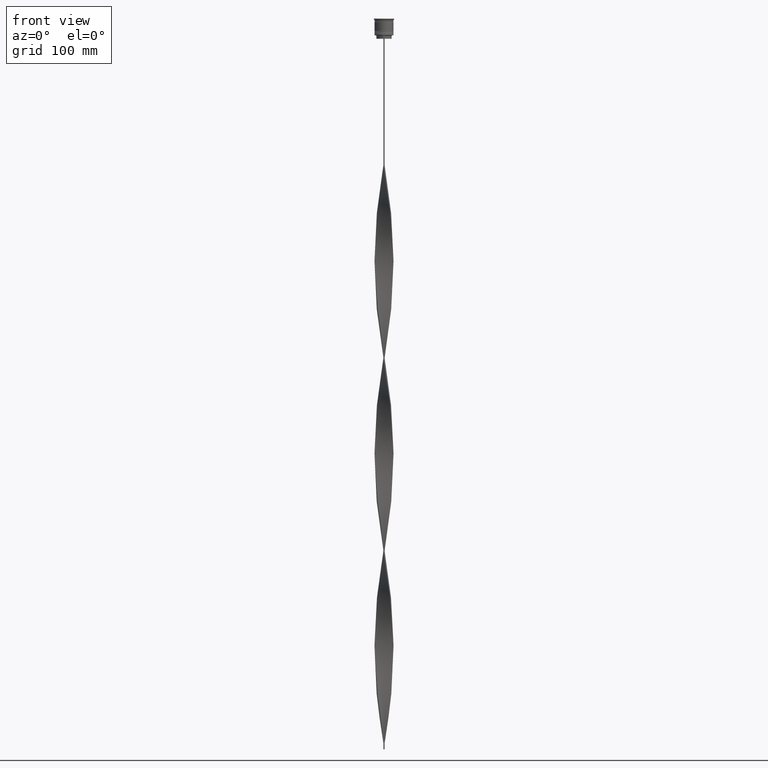
[diagram: clean part render]
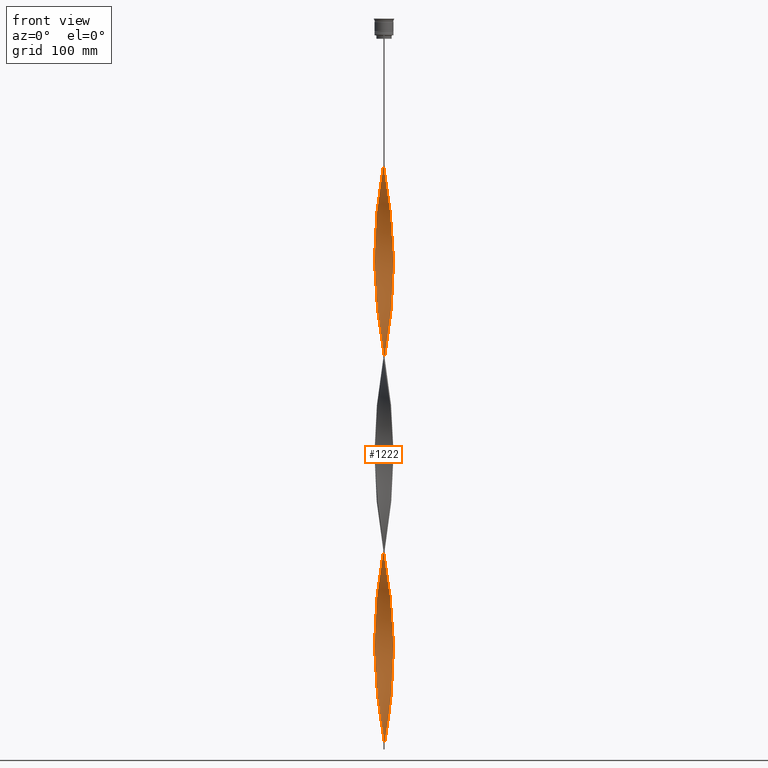
[diagram: same view with one face highlighted and labeled with its STEP entity id]
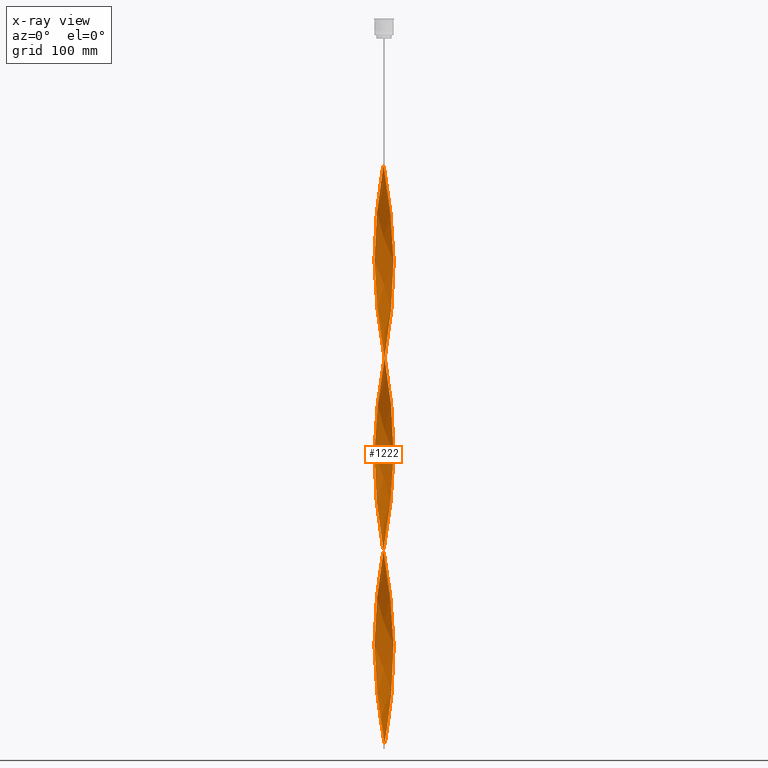
[diagram: x-ray of the same camera — body ghosted, the highlighted face saturated]
A machine part, front view. The second image highlights one B-rep face of the part: STEP entity #1222.
The next image is the same camera in x-ray: the body ghosted, the highlighted face saturated — about 0% of this face is hidden behind the body in this view.
In plain terms, the highlighted face is a freeform B-spline surface patch.
Its self-contained STEP definition (entity closure, byte-faithful):
#1 = CARTESIAN_POINT ( 'NONE',  ( -4.292182732835652992, 6.769576603300047957, -472.9200000000000159 ) ) ;
#4 = CARTESIAN_POINT ( 'NONE',  ( 0.5066085178571956282, -7.999584227297980021, -453.4800000000000750 ) ) ;
#7 = CARTESIAN_POINT ( 'NONE',  ( -7.889819750753890304, -1.501686454361715661, -210.4800000000000182 ) ) ;
#8 = CARTESIAN_POINT ( 'NONE',  ( -5.840861161140214364, -5.489475466406953608, -408.1200000000000614 ) ) ;
#17 = CARTESIAN_POINT ( 'NONE',  ( 7.268492320028115294, -3.416626596555745188, -508.5600000000001160 ) ) ;
#26 = CARTESIAN_POINT ( 'NONE',  ( 5.111892533718807030, -6.174022572335639225, -485.8800000000000523 ) ) ;
#29 = CARTESIAN_POINT ( 'NONE',  ( -6.779406190655034692, 4.306270963224198667, -171.6000000000000227 ) ) ;
#31 = VERTEX_POINT ( 'NONE', #3126 ) ;
#38 = CARTESIAN_POINT ( 'NONE',  ( 7.451506065510694832, 2.953820806287573930, -550.6800000000000637 ) ) ;
#49 = CARTESIAN_POINT ( 'NONE',  ( -4.723455957963780705, -6.495635590130970805, -249.3600000000000136 ) ) ;
#50 = CARTESIAN_POINT ( 'NONE',  ( -8.015400789812517246, 0.5076101705763133021, -197.5200000000000387 ) ) ;
#60 = CARTESIAN_POINT ( 'NONE',  ( 4.292182732835655656, 6.769576603300054174, -583.0800000000000409 ) ) ;
#84 = CARTESIAN_POINT ( 'NONE',  ( -7.025726773945625503, 3.858647858753588622, -343.3199999999999932 ) ) ;
#89 = CARTESIAN_POINT ( 'NONE',  ( 0.5000000000000025535, -7.999999999999996447, -609.0000000000000000 ) ) ;
#95 = CARTESIAN_POINT ( 'NONE',  ( 2.953492255452158766, 7.468681369799081260, -592.8000000000000682 ) ) ;
#103 = CARTESIAN_POINT ( 'NONE',  ( 5.840861161140217028, 5.489475466406951831, -246.1200000000000045 ) ) ;
#108 = CARTESIAN_POINT ( 'NONE',  ( -0.5066085178571934078, -7.999584227297972916, -602.5200000000000955 ) ) ;
#113 = CARTESIAN_POINT ( 'NONE',  ( 7.022536801505617099, -3.864450397080961608, -336.8400000000000318 ) ) ;
#115 = CARTESIAN_POINT ( 'NONE',  ( -8.015817384569135839, -0.5009885865355724333, -204.0000000000000284 ) ) ;
#126 = CARTESIAN_POINT ( 'NONE',  ( 3.415876052791792628, -7.251330277401769386, -148.9199999999999875 ) ) ;
#132 = CARTESIAN_POINT ( 'NONE',  ( -1.009899697685191056, -7.967711120969122263, -599.2799999999999727 ) ) ;
#139 = CARTESIAN_POINT ( 'NONE',  ( -7.764607348536642917, -1.990194142050142334, -213.7200000000000273 ) ) ;
#152 = CARTESIAN_POINT ( 'NONE',  ( 7.639394946319403523, -2.478701829738568563, -191.0400000000000205 ) ) ;
#156 = CARTESIAN_POINT ( 'NONE',  ( -2.480108178533294794, -7.622274163448348183, -589.5600000000000591 ) ) ;
#157 = LINE ( 'NONE', #499, #3297 ) ;
#158 = CARTESIAN_POINT ( 'NONE',  ( -7.952818567661513960, -1.001337520448642771, -207.2400000000000091 ) ) ;
#160 = CARTESIAN_POINT ( 'NONE',  ( 3.866277073390938845, 7.039617851728270814, -262.3199999999999932 ) ) ;
#162 = CARTESIAN_POINT ( 'NONE',  ( -0.4999999999999998890, 7.999999999999996447, -123.0000000000000000 ) ) ;
#167 = CARTESIAN_POINT ( 'NONE',  ( -0.5066085178571957393, 7.999584227297980021, -291.4800000000000182 ) ) ;
#177 = CARTESIAN_POINT ( 'NONE',  ( 7.022536801505617099, -3.864450397080961608, -336.8400000000000318 ) ) ;
#179 = CARTESIAN_POINT ( 'NONE',  ( 8.015609087190831872, 0.003310792020371779686, -207.2400000000000091 ) ) ;
#190 = CARTESIAN_POINT ( 'NONE',  ( 7.762960627548705084, 1.996607696852005009, -544.2000000000000455 ) ) ;
#206 = CARTESIAN_POINT ( 'NONE',  ( 7.762960627548698866, -1.996607696852002345, -349.8000000000000114 ) ) ;
#215 = CARTESIAN_POINT ( 'NONE',  ( 1.009899697685192832, -7.967711120969127592, -456.7200000000000841 ) ) ;
#226 = CARTESIAN_POINT ( 'NONE',  ( -7.889819750753890304, -1.501686454361715439, -534.4800000000000182 ) ) ;
#232 = CARTESIAN_POINT ( 'NONE',  ( 7.639394946319403523, -2.478701829738568563, -515.0400000000001910 ) ) ;
#242 = CARTESIAN_POINT ( 'NONE',  ( 7.951988663122369516, -1.007906891321452170, -356.2800000000000296 ) ) ;
#243 = CARTESIAN_POINT ( 'NONE',  ( -4.292182732835652992, 6.769576603300047957, -472.9200000000000159 ) ) ;
#245 = CARTESIAN_POINT ( 'NONE',  ( 3.409884664421549250, 7.254149610763675149, -265.5600000000000023 ) ) ;
#249 = CARTESIAN_POINT ( 'NONE',  ( 0.003317338029198458726, -8.031457333626828898, -126.2400000000000233 ) ) ;
#254 = CARTESIAN_POINT ( 'NONE',  ( -2.473810677883152120, -7.624320345446626845, -434.0400000000000205 ) ) ;
#269 = CARTESIAN_POINT ( 'NONE',  ( -1.003317338029197980, 7.968542666373173766, -450.2400000000000659 ) ) ;
#271 = CARTESIAN_POINT ( 'NONE',  ( -7.639394946319404411, 2.478701829738565898, -353.0400000000000205 ) ) ;
#274 = CARTESIAN_POINT ( 'NONE',  ( -7.762960627548698866, 1.996607696852001457, -187.8000000000000114 ) ) ;
#293 = CARTESIAN_POINT ( 'NONE',  ( 5.111892533718798148, 6.174022572335636561, -408.1200000000000614 ) ) ;
#295 = CARTESIAN_POINT ( 'NONE',  ( -5.106790515527257490, -6.178243328853349148, -414.6000000000000227 ) ) ;
#305 = CARTESIAN_POINT ( 'NONE',  ( 7.888576536432224451, 1.508203612066593147, -540.9600000000001501 ) ) ;
#313 = CARTESIAN_POINT ( 'NONE',  ( -3.409884664421547917, 7.254149610763668043, -466.4399999999999977 ) ) ;
#314 = CARTESIAN_POINT ( 'NONE',  ( 1.009899697685191944, 7.967711120969122263, -437.2800000000000296 ) ) ;
#316 = CARTESIAN_POINT ( 'NONE',  ( -4.723455957963788698, 6.495635590130974357, -320.6400000000001000 ) ) ;
#318 = CARTESIAN_POINT ( 'NONE',  ( -7.265667412356201282, 3.422629830937727213, -178.0800000000000125 ) ) ;
#326 = CARTESIAN_POINT ( 'NONE',  ( 4.718088392280371579, 6.499535354871838422, -579.8400000000001455 ) ) ;
#336 = CARTESIAN_POINT ( 'NONE',  ( -1.498723219171672616, 7.874250993733667769, -453.4800000000000750 ) ) ;
#340 = CARTESIAN_POINT ( 'NONE',  ( -3.866277073390936625, -7.039617851728271702, -424.3200000000000500 ) ) ;
#344 = CARTESIAN_POINT ( 'NONE',  ( -7.762960627548706860, -1.996607696852001901, -382.2000000000000455 ) ) ;
#362 = CARTESIAN_POINT ( 'NONE',  ( -0.4999999999999998890, 7.999999999999996447, -447.0000000000000000 ) ) ;
#365 = CARTESIAN_POINT ( 'NONE',  ( -7.952818567661520177, 1.001337520448641660, -362.7600000000000477 ) ) ;
#370 = CARTESIAN_POINT ( 'NONE',  ( 3.872091084340840705, -7.036421572160664439, -152.1599999999999966 ) ) ;
#377 = CARTESIAN_POINT ( 'NONE',  ( 7.453943633173757632, -2.947664213147156875, -511.8000000000000114 ) ) ;
#385 = CARTESIAN_POINT ( 'NONE',  ( 4.297773521152304710, 6.766028581145815401, -414.6000000000000227 ) ) ;
#389 = CARTESIAN_POINT ( 'NONE',  ( -7.268492320028109077, -3.416626596555743411, -223.4399999999999977 ) ) ;
#391 = CARTESIAN_POINT ( 'NONE',  ( -7.951988663122369516, 1.007906891321451281, -194.2800000000000011 ) ) ;
#405 = CARTESIAN_POINT ( 'NONE',  ( 0.5066085178571909653, 7.999584227297972916, -440.5200000000000387 ) ) ;
#410 = CARTESIAN_POINT ( 'NONE',  ( -6.486710006526618777, -4.708778322582980458, -233.1599999999999966 ) ) ;
#412 = CARTESIAN_POINT ( 'NONE',  ( 0.4999999999999972800, 8.000000000000003553, -609.0000000000000000 ) ) ;
#423 = CARTESIAN_POINT ( 'NONE',  ( 1.498723219171672172, 7.874250993733674875, -602.5200000000000955 ) ) ;
#425 = CARTESIAN_POINT ( 'NONE',  ( -3.415876052791793072, 7.251330277401769386, -310.9199999999999591 ) ) ;
#431 = CARTESIAN_POINT ( 'NONE',  ( -7.952818567661513960, -1.001337520448642771, -531.2400000000000091 ) ) ;
#434 = ORIENTED_EDGE ( 'NONE', *, *, #3643, .F. ) ;
#436 = CARTESIAN_POINT ( 'NONE',  ( -2.000555335823850367, -7.778309344253826474, -268.8000000000001251 ) ) ;
#445 = CARTESIAN_POINT ( 'NONE',  ( 6.482817937080661785, 4.714135296601625669, -239.6400000000000148 ) ) ;
#457 = CARTESIAN_POINT ( 'NONE',  ( 1.994129100314148140, -7.779959321094161773, -294.7199999999999136 ) ) ;
#458 = CARTESIAN_POINT ( 'NONE',  ( -5.840861161140213476, 5.489475466406945614, -161.8799999999999955 ) ) ;
#469 = CARTESIAN_POINT ( 'NONE',  ( -1.009899697685193942, 7.967711120969127592, -294.7199999999999704 ) ) ;
#474 = CARTESIAN_POINT ( 'NONE',  ( -4.297773521152310039, -6.766028581145813625, -576.6000000000000227 ) ) ;
#480 = CARTESIAN_POINT ( 'NONE',  ( -4.297773521152310039, -6.766028581145813625, -252.6000000000000512 ) ) ;
#483 = CARTESIAN_POINT ( 'NONE',  ( -0.4999999999999998890, 7.999999999999996447, -123.0000000000000000 ) ) ;
#491 = CARTESIAN_POINT ( 'NONE',  ( 2.953492255452158766, 7.468681369799081260, -268.8000000000000682 ) ) ;
#497 = CARTESIAN_POINT ( 'NONE',  ( -6.486710006526618777, -4.708778322582980458, -557.1600000000000819 ) ) ;
#499 = CARTESIAN_POINT ( 'NONE',  ( -0.4999999999999998890, -8.000000000000003553, -123.0000000000000000 ) ) ;
#503 = CARTESIAN_POINT ( 'NONE',  ( 4.718088392280368915, -6.499535354871832205, -314.1599999999999682 ) ) ;
#511 = CARTESIAN_POINT ( 'NONE',  ( -2.480108178533302343, 7.622274163448351736, -304.4400000000000546 ) ) ;
#517 = CARTESIAN_POINT ( 'NONE',  ( 7.889819750753890304, 1.501686454361714107, -372.4800000000000750 ) ) ;
#527 = CARTESIAN_POINT ( 'NONE',  ( -8.015817384569142945, 0.5009885865355726553, -366.0000000000000000 ) ) ;
#537 = CARTESIAN_POINT ( 'NONE',  ( 4.292182732835652992, -6.769576603300047957, -310.9199999999999591 ) ) ;
#539 = CARTESIAN_POINT ( 'NONE',  ( 6.482817937080661785, 4.714135296601625669, -239.6400000000000148 ) ) ;
#547 = CARTESIAN_POINT ( 'NONE',  ( -8.015400789812524351, -0.5076101705763139682, -372.4800000000000750 ) ) ;
#557 = CARTESIAN_POINT ( 'NONE',  ( -2.000555335823850367, -7.778309344253826474, -268.8000000000000682 ) ) ;
#560 = CARTESIAN_POINT ( 'NONE',  ( 8.015817384569144721, -0.5009885865355698797, -204.0000000000000284 ) ) ;
#567 = CARTESIAN_POINT ( 'NONE',  ( -6.779406190655036468, -4.306270963224207549, -398.4000000000000909 ) ) ;
#581 = CARTESIAN_POINT ( 'NONE',  ( -5.840861161140213476, 5.489475466406945614, -485.8800000000000523 ) ) ;
#583 = CARTESIAN_POINT ( 'NONE',  ( 5.495492638774148730, 5.856951302834855433, -249.3600000000000136 ) ) ;
#585 = CARTESIAN_POINT ( 'NONE',  ( -5.495492638774146954, 5.856951302834847439, -158.6399999999999864 ) ) ;
#586 = FACE_OUTER_BOUND ( 'NONE', #3902, .T. ) ;
#590 = CARTESIAN_POINT ( 'NONE',  ( 4.297773521152313592, -6.766028581145818954, -479.4000000000000341 ) ) ;
#601 = CARTESIAN_POINT ( 'NONE',  ( -6.190458785190113389, -5.116887524214520866, -560.3999999999999773 ) ) ;
#603 = CARTESIAN_POINT ( 'NONE',  ( -8.015400789812524351, -0.5076101705763139682, -372.4800000000000750 ) ) ;
#618 = CARTESIAN_POINT ( 'NONE',  ( -4.723455957963780705, -6.495635590130970805, -573.3600000000001273 ) ) ;
#620 = CARTESIAN_POINT ( 'NONE',  ( -7.951988663122374845, -1.007906891321457499, -375.7199999999999704 ) ) ;
#632 = CARTESIAN_POINT ( 'NONE',  ( 7.764607348536651799, -1.990194142050141002, -518.2800000000000864 ) ) ;
#640 = CARTESIAN_POINT ( 'NONE',  ( -2.000555335823850367, -7.778309344253826474, -592.8000000000000682 ) ) ;
#654 = CARTESIAN_POINT ( 'NONE',  ( 6.482817937080661785, 4.714135296601625669, -563.6399999999999864 ) ) ;
#661 = CARTESIAN_POINT ( 'NONE',  ( -6.779406190655034692, 4.306270963224198667, -495.6000000000000227 ) ) ;
#663 = CARTESIAN_POINT ( 'NONE',  ( -2.953492255452155657, -7.468681369799083924, -430.8000000000000682 ) ) ;
#666 = CARTESIAN_POINT ( 'NONE',  ( 1.505227516754523709, -7.873010232611480141, -459.9600000000000364 ) ) ;
#667 = CARTESIAN_POINT ( 'NONE',  ( 2.959661021242745438, -7.466238982642876110, -145.6800000000000352 ) ) ;
#681 = CARTESIAN_POINT ( 'NONE',  ( 6.190458785190108060, 5.116887524214526195, -398.4000000000000909 ) ) ;
#685 = CARTESIAN_POINT ( 'NONE',  ( -5.500329109473828026, 5.852409554540304981, -327.1200000000001182 ) ) ;
#689 = CARTESIAN_POINT ( 'NONE',  ( -1.994129100314147029, 7.779959321094164437, -132.7199999999999989 ) ) ;
#699 = CARTESIAN_POINT ( 'NONE',  ( 0.003317338029198459159, -8.031457333626830675, -126.2400000000000233 ) ) ;
#715 = CARTESIAN_POINT ( 'NONE',  ( -7.637344718665181276, 2.485011781637411765, -184.5600000000000307 ) ) ;
#716 = CARTESIAN_POINT ( 'NONE',  ( 0.5000000000000025535, -7.999999999999996447, -609.0000000000000000 ) ) ;
#731 = CARTESIAN_POINT ( 'NONE',  ( 3.872091084340834488, 7.036421572160659110, -417.8400000000001455 ) ) ;
#737 = CARTESIAN_POINT ( 'NONE',  ( 4.718088392280371579, 6.499535354871838422, -579.8400000000001455 ) ) ;
#746 = CARTESIAN_POINT ( 'NONE',  ( 5.106790515527261931, 6.178243328853344707, -252.6000000000000512 ) ) ;
#755 = CARTESIAN_POINT ( 'NONE',  ( 5.840861161140217028, 5.489475466406951831, -570.1200000000000045 ) ) ;
#768 = CARTESIAN_POINT ( 'NONE',  ( 1.498723219171672172, 7.874250993733674875, -278.5199999999999818 ) ) ;
#773 = CARTESIAN_POINT ( 'NONE',  ( -7.637344718665181276, 2.485011781637411321, -508.5600000000001160 ) ) ;
#778 = CARTESIAN_POINT ( 'NONE',  ( 6.482817937080657344, -4.714135296601619451, -330.3600000000000136 ) ) ;
#780 = CARTESIAN_POINT ( 'NONE',  ( -4.718088392280368026, 6.499535354871833093, -152.1599999999999966 ) ) ;
#791 = CARTESIAN_POINT ( 'NONE',  ( 0.4999999999999972800, 8.000000000000003553, -285.0000000000000568 ) ) ;
#801 = CARTESIAN_POINT ( 'NONE',  ( -0.5066085178571934078, -7.999584227297972916, -278.5199999999999818 ) ) ;
#812 = CARTESIAN_POINT ( 'NONE',  ( -5.111892533718807030, 6.174022572335639225, -323.8799999999999955 ) ) ;
#820 = CARTESIAN_POINT ( 'NONE',  ( 3.866277073390937957, -7.039617851728263709, -307.6800000000000637 ) ) ;
#822 = CARTESIAN_POINT ( 'NONE',  ( -1.505227516754525485, 7.873010232611480141, -297.9599999999999795 ) ) ;
#830 = CARTESIAN_POINT ( 'NONE',  ( 4.297773521152313592, -6.766028581145818954, -155.4000000000000057 ) ) ;
#835 = CARTESIAN_POINT ( 'NONE',  ( -5.845393947331967155, -5.484648539377411147, -563.6399999999999864 ) ) ;
#843 = CARTESIAN_POINT ( 'NONE',  ( -7.268492320028109077, -3.416626596555743411, -223.4399999999999977 ) ) ;
#852 = CARTESIAN_POINT ( 'NONE',  ( -7.451506065510695720, -2.953820806287572598, -388.6800000000000068 ) ) ;
#860 = CARTESIAN_POINT ( 'NONE',  ( 6.779406190655033804, -4.306270963224200443, -333.6000000000000227 ) ) ;
#861 = CARTESIAN_POINT ( 'NONE',  ( -2.480108178533294794, -7.622274163448348183, -265.5600000000000023 ) ) ;
#865 = CARTESIAN_POINT ( 'NONE',  ( 0.4999999999999972800, 8.000000000000003553, -609.0000000000000000 ) ) ;
#872 = CARTESIAN_POINT ( 'NONE',  ( 7.951988663122374845, 1.007906891321455056, -537.7200000000000273 ) ) ;
#883 = CARTESIAN_POINT ( 'NONE',  ( 8.015817384569135839, 0.5009885865355696577, -366.0000000000000000 ) ) ;
#885 = CARTESIAN_POINT ( 'NONE',  ( 6.186229683506283550, 5.121999629979047342, -242.8800000000000239 ) ) ;
#890 = CARTESIAN_POINT ( 'NONE',  ( 0.4999999999999990563, 2.666666666666670515, -609.0000000000000000 ) ) ;
#894 = CARTESIAN_POINT ( 'NONE',  ( 6.486710006526624994, -4.708778322582981346, -498.8400000000000318 ) ) ;
#909 = CARTESIAN_POINT ( 'NONE',  ( 2.959661021242737888, 7.466238982642870781, -424.3200000000000500 ) ) ;
#912 = CARTESIAN_POINT ( 'NONE',  ( 5.840861161140217028, 5.489475466406951831, -246.1200000000000045 ) ) ;
#914 = CARTESIAN_POINT ( 'NONE',  ( -1.994129100314146807, 7.779959321094164437, -132.7199999999999989 ) ) ;
#921 = CARTESIAN_POINT ( 'NONE',  ( -7.952818567661520177, 1.001337520448641660, -362.7600000000000477 ) ) ;
#936 = CARTESIAN_POINT ( 'NONE',  ( -7.637344718665181276, 2.485011781637411765, -508.5600000000001160 ) ) ;
#938 = CARTESIAN_POINT ( 'NONE',  ( 4.723455957963786922, -6.495635590130975245, -482.6400000000001000 ) ) ;
#952 = CARTESIAN_POINT ( 'NONE',  ( -1.498723219171672616, 7.874250993733667769, -453.4800000000000750 ) ) ;
#954 = CARTESIAN_POINT ( 'NONE',  ( -7.762960627548706860, -1.996607696852001901, -382.2000000000000455 ) ) ;
#958 = CARTESIAN_POINT ( 'NONE',  ( -8.015609087190826543, 0.003310792020370478643, -200.7599999999999909 ) ) ;
#972 = CARTESIAN_POINT ( 'NONE',  ( -3.872091084340837153, -7.036421572160659110, -579.8400000000001455 ) ) ;
#997 = CARTESIAN_POINT ( 'NONE',  ( -2.473810677883152565, 7.624320345446617964, -459.9600000000000364 ) ) ;
#999 = CARTESIAN_POINT ( 'NONE',  ( -6.486710006526627659, 4.708778322582980458, -336.8400000000000318 ) ) ;
#1003 = CARTESIAN_POINT ( 'NONE',  ( 7.025726773945623727, -3.858647858753592175, -505.3199999999999932 ) ) ;
#1011 = CARTESIAN_POINT ( 'NONE',  ( 2.953492255452158766, 7.468681369799082148, -592.8000000000001819 ) ) ;
#1018 = CARTESIAN_POINT ( 'NONE',  ( 0.003317338029197050130, 8.031457333626821793, -443.7599999999999909 ) ) ;
#1021 = CARTESIAN_POINT ( 'NONE',  ( -7.888576536432226227, -1.508203612066594035, -378.9600000000000932 ) ) ;
#1042 = CARTESIAN_POINT ( 'NONE',  ( -5.495492638774146954, 5.856951302834847439, -482.6400000000001000 ) ) ;
#1047 = CARTESIAN_POINT ( 'NONE',  ( -0.4999999999999998890, 7.999999999999996447, -123.0000000000000000 ) ) ;
#1058 = CARTESIAN_POINT ( 'NONE',  ( 2.000555335823854808, -7.778309344253831803, -139.1999999999999886 ) ) ;
#1083 = CARTESIAN_POINT ( 'NONE',  ( 3.415876052791789075, 7.251330277401763169, -421.0799999999999841 ) ) ;
#1087 = ORIENTED_EDGE ( 'NONE', *, *, #2995, .T. ) ;
#1088 = CARTESIAN_POINT ( 'NONE',  ( -8.015817384569137616, -0.5009885865355725443, -204.0000000000000284 ) ) ;
#1097 = CARTESIAN_POINT ( 'NONE',  ( 5.845393947331972484, -5.484648539377413812, -168.3600000000000136 ) ) ;
#1108 = CARTESIAN_POINT ( 'NONE',  ( -2.953492255452158766, 7.468681369799075043, -139.1999999999999886 ) ) ;
#1123 = CARTESIAN_POINT ( 'NONE',  ( 5.111892533718807030, -6.174022572335639225, -161.8799999999999955 ) ) ;
#1128 = CARTESIAN_POINT ( 'NONE',  ( -6.779406190655033804, 4.306270963224198667, -495.6000000000000227 ) ) ;
#1131 = CARTESIAN_POINT ( 'NONE',  ( 6.486710006526618777, 4.708778322582979570, -395.1600000000000250 ) ) ;
#1143 = CARTESIAN_POINT ( 'NONE',  ( 2.473810677883154785, 7.624320345446625069, -272.0400000000000205 ) ) ;
#1147 = CARTESIAN_POINT ( 'NONE',  ( -8.015817384569137616, -0.5009885865355725443, -528.0000000000000000 ) ) ;
#1151 = CARTESIAN_POINT ( 'NONE',  ( 1.003317338029197980, -7.968542666373174654, -288.2400000000001796 ) ) ;
#1152 = CARTESIAN_POINT ( 'NONE',  ( 2.953492255452161430, -7.468681369799075043, -301.2000000000001023 ) ) ;
#1161 = CARTESIAN_POINT ( 'NONE',  ( 3.872091084340840705, -7.036421572160664439, -152.1599999999999966 ) ) ;
#1173 = CARTESIAN_POINT ( 'NONE',  ( 8.015400789812517246, -0.5076101705763091942, -359.5200000000000387 ) ) ;
#1175 = CARTESIAN_POINT ( 'NONE',  ( 7.453943633173757632, -2.947664213147156875, -187.8000000000000114 ) ) ;
#1183 = CARTESIAN_POINT ( 'NONE',  ( 7.764607348536651799, -1.990194142050141002, -194.2800000000000011 ) ) ;
#1190 = CARTESIAN_POINT ( 'NONE',  ( -1.505227516754522377, -7.873010232611473036, -596.0399999999999636 ) ) ;
#1199 = CARTESIAN_POINT ( 'NONE',  ( 7.451506065510691279, -2.953820806287565937, -343.3199999999999932 ) ) ;
#1201 = CARTESIAN_POINT ( 'NONE',  ( 7.762960627548705084, 1.996607696852005009, -220.2000000000000171 ) ) ;
#1208 = CARTESIAN_POINT ( 'NONE',  ( 7.451506065510694832, 2.953820806287573930, -550.6800000000000637 ) ) ;
#1218 = CARTESIAN_POINT ( 'NONE',  ( 7.764607348536642029, 1.990194142050144555, -375.7199999999999704 ) ) ;
#1222 = ADVANCED_FACE ( 'NONE', ( #586 ), #1495, .T. ) ;
#1227 = CARTESIAN_POINT ( 'NONE',  ( -1.498723219171669507, -7.874250993733674875, -440.5200000000000387 ) ) ;
#1238 = CARTESIAN_POINT ( 'NONE',  ( -2.953492255452158766, 7.468681369799075043, -463.2000000000000455 ) ) ;
#1240 = CARTESIAN_POINT ( 'NONE',  ( 7.637344718665186605, 2.485011781637414874, -223.4399999999999977 ) ) ;
#1249 = CARTESIAN_POINT ( 'NONE',  ( -3.409884664421550138, -7.254149610763675149, -427.5600000000000023 ) ) ;
#1262 = CARTESIAN_POINT ( 'NONE',  ( 8.015400789812517246, -0.5076101705763091942, -359.5200000000000955 ) ) ;
#1263 = CARTESIAN_POINT ( 'NONE',  ( -8.015609087190826543, 0.003310792020370478643, -524.7599999999999909 ) ) ;
#1266 = CARTESIAN_POINT ( 'NONE',  ( 3.872091084340840705, -7.036421572160664439, -476.1600000000000250 ) ) ;
#1269 = CARTESIAN_POINT ( 'NONE',  ( 1.009899697685192832, -7.967711120969127592, -132.7199999999999989 ) ) ;
#1274 = CARTESIAN_POINT ( 'NONE',  ( -6.482817937080660009, -4.714135296601627445, -401.6399999999999864 ) ) ;
#1276 = CARTESIAN_POINT ( 'NONE',  ( -0.4999999999999998890, -8.000000000000003553, -123.0000000000000000 ) ) ;
#1284 = CARTESIAN_POINT ( 'NONE',  ( -3.415876052791788187, -7.251330277401763169, -583.0800000000000409 ) ) ;
#1286 = CARTESIAN_POINT ( 'NONE',  ( -6.482817937080660009, -4.714135296601627445, -401.6399999999999864 ) ) ;
#1304 = CARTESIAN_POINT ( 'NONE',  ( -3.866277073390938401, 7.039617851728262821, -469.6800000000001205 ) ) ;
#1306 = CARTESIAN_POINT ( 'NONE',  ( -4.718088392280368915, -6.499535354871840198, -417.8400000000001455 ) ) ;
#1309 = CARTESIAN_POINT ( 'NONE',  ( -4.292182732835652992, 6.769576603300047957, -148.9199999999999875 ) ) ;
#1323 = CARTESIAN_POINT ( 'NONE',  ( 6.486710006526618777, 4.708778322582979570, -395.1600000000000250 ) ) ;
#1326 = CARTESIAN_POINT ( 'NONE',  ( -7.762960627548698866, 1.996607696852001457, -511.8000000000000114 ) ) ;
#1328 = CARTESIAN_POINT ( 'NONE',  ( -6.779406190655036468, -4.306270963224208437, -398.4000000000000909 ) ) ;
#1341 = CARTESIAN_POINT ( 'NONE',  ( 3.409884664421549250, 7.254149610763675149, -589.5600000000000591 ) ) ;
#1348 = CARTESIAN_POINT ( 'NONE',  ( 2.480108178533295682, 7.622274163448348183, -427.5600000000000023 ) ) ;
#1352 = CARTESIAN_POINT ( 'NONE',  ( 1.009899697685192832, -7.967711120969127592, -456.7200000000000841 ) ) ;
#1366 = CARTESIAN_POINT ( 'NONE',  ( 8.015817384569144721, -0.5009885865355698797, -528.0000000000000000 ) ) ;
#1372 = VERTEX_POINT ( 'NONE', #3251 ) ;
#1375 = CARTESIAN_POINT ( 'NONE',  ( 6.486710006526624994, -4.708778322582981346, -498.8400000000000318 ) ) ;
#1379 = CARTESIAN_POINT ( 'NONE',  ( -7.265667412356201282, 3.422629830937727213, -178.0800000000000125 ) ) ;
#1380 = CARTESIAN_POINT ( 'NONE',  ( 4.723455957963786922, -6.495635590130975245, -158.6399999999999864 ) ) ;
#1388 = CARTESIAN_POINT ( 'NONE',  ( 7.639394946319403523, -2.478701829738568119, -515.0400000000001910 ) ) ;
#1399 = CARTESIAN_POINT ( 'NONE',  ( 5.495492638774149619, 5.856951302834855433, -573.3600000000001273 ) ) ;
#1411 = CARTESIAN_POINT ( 'NONE',  ( 1.505227516754523709, -7.873010232611480141, -135.9600000000000080 ) ) ;
#1417 = CARTESIAN_POINT ( 'NONE',  ( 5.845393947331965379, 5.484648539377412035, -401.6399999999999864 ) ) ;
#1433 = CARTESIAN_POINT ( 'NONE',  ( -7.268492320028114406, 3.416626596555744744, -346.5600000000000023 ) ) ;
#1437 = CARTESIAN_POINT ( 'NONE',  ( -7.639394946319396418, -2.478701829738567231, -540.9600000000001501 ) ) ;
#1455 = CARTESIAN_POINT ( 'NONE',  ( 8.015609087190831872, 0.003310792020371779686, -207.2400000000000091 ) ) ;
#1458 = CARTESIAN_POINT ( 'NONE',  ( -7.268492320028109077, -3.416626596555743411, -547.4400000000001683 ) ) ;
#1464 = CARTESIAN_POINT ( 'NONE',  ( 7.265667412356200394, -3.422629830937728102, -340.0800000000000978 ) ) ;
#1467 = CARTESIAN_POINT ( 'NONE',  ( 6.782961227863125941, 4.300669120951440050, -391.9200000000001296 ) ) ;
#1482 = CARTESIAN_POINT ( 'NONE',  ( -4.723455957963788698, 6.495635590130974357, -320.6400000000001000 ) ) ;
#1487 = CARTESIAN_POINT ( 'NONE',  ( -6.482817937080656456, 4.714135296601620340, -492.3600000000000136 ) ) ;
#1492 = CARTESIAN_POINT ( 'NONE',  ( -1.009899697685191056, -7.967711120969122263, -275.2799999999999727 ) ) ;
#1493 = CARTESIAN_POINT ( 'NONE',  ( -3.415876052791788187, -7.251330277401763169, -259.0799999999999841 ) ) ;
#1495 =( BOUNDED_SURFACE ( )  B_SPLINE_SURFACE ( 1, 2, ( 
 ( #3314, #249, #4383, #1269, #4163, #3778, #4432, #667, #1630, #370, #3708, #1380, #3014, #4410, #1875, #2287, #2219, #3265, #2240, #3334, #1175, #2609, #3245, #2968, #3616, #560, #179, #2591, #1600, #4357, #1201, #1240, #1563, #1515, #3994, #2632, #539, #885, #912, #583, #2261, #3952, #4020, #160, #245, #2545, #3931, #2921, #3684, #3974, #1940, #2898, #2948, #4273, #822, #2196, #3639, #3595, #3055, #4453, #3031, #316, #4428, #685, #4045, #4067, #999, #3010, #3451, #2358, #1626, #271, #2313, #2381, #365, #3356, #2681, #603, #620, #1021, #954, #1983, #3751, #2055, #4406, #1328, #1286, #3424, #3380, #3774, #295, #1306, #2988, #340, #1669, #663, #2722, #1649, #4113, #1692, #2030, #3083, #4, #1352, #2745, #4132, #2403, #4378, #3800, #1266, #2659, #938, #26, #1718, #2766, #3104, #1375, #4158, #2067, #17, #377, #1388, #632, #4147, #1732, #1366, #1706, #3116, #1998, #305, #2042, #1660, #38, #3765, #3042, #2440, #654, #4170, #3069, #3787, #3143, #326, #60, #4467, #1341, #1011, #2393, #2114, #423, #4193, #865 ),
 ( #483, #3034, #2702, #914, #4071, #2264, #4431, #3662, #1309, #1920, #4093, #585, #2289, #2010, #3357, #1583, #3404, #318, #3059, #3337, #274, #1602, #3013, #4409, #958, #1088, #2768, #7, #4161, #4135, #3479, #389, #2406, #2100, #410, #3128, #2725, #3804, #3454, #49, #4184, #3501, #2472, #3862, #2126, #436, #3971, #1492, #2834, #4290, #4270, #1151, #2215, #457, #2542, #1810, #3613, #3200, #3262, #2497, #2586, #3886, #4313, #1533, #778, #860, #113, #1464, #2518, #1560, #2329, #2606, #242, #1262, #2656, #4041, #1666, #3797, #2449, #3051, #2005, #3820, #4155, #3473, #1323, #681, #1417, #2808, #2788, #2718, #385, #731, #1083, #2027, #1348, #1740, #2763, #2095, #405, #1018, #362, #3857, #336, #1760, #3400, #3079, #313, #4110, #1, #1714, #3101, #1042, #2422, #3124, #1487, #1128, #3259, #2185, #4287, #773, #3545, #4243, #3563, #2119, #4266, #1147, #431, #3609, #2874, #1437, #1510, #1458, #3584, #3904, #497, #2538, #835, #2490, #2166, #3238, #474, #2913, #1785, #1803, #156, #3195, #1190, #132, #108, #2893, #89 ) ),
 .UNSPECIFIED., .F., .F., .F. ) 
 B_SPLINE_SURFACE_WITH_KNOTS ( ( 2, 2 ),
 ( 3, 2, 2, 2, 2, 2, 2, 2, 2, 2, 2, 2, 2, 2, 2, 2, 2, 2, 2, 2, 2, 2, 2, 2, 2, 2, 2, 2, 2, 2, 2, 2, 2, 2, 2, 2, 2, 2, 2, 2, 2, 2, 2, 2, 2, 2, 2, 2, 2, 2, 2, 2, 2, 2, 2, 2, 2, 2, 2, 2, 2, 2, 2, 2, 2, 2, 2, 2, 2, 2, 2, 2, 2, 2, 2, 3 ),
 ( 0.000000000000000000, 1.000000000000000000 ),
 ( 0.000000000000000000, 0.01000000000000000021, 0.02000000000000000042, 0.02999999999999999889, 0.04000000000000000083, 0.05000000000000000278, 0.05999999999999999778, 0.07000000000000000666, 0.08000000000000000167, 0.08999999999999999667, 0.1000000000000000056, 0.1100000000000000006, 0.1199999999999999956, 0.1300000000000000044, 0.1400000000000000133, 0.1499999999999999944, 0.1600000000000000033, 0.1700000000000000122, 0.1799999999999999933, 0.1900000000000000022, 0.2000000000000000111, 0.2099999999999999922, 0.2200000000000000011, 0.2300000000000000100, 0.2399999999999999911, 0.2500000000000000000, 0.2600000000000000089, 0.2700000000000000178, 0.2800000000000000266, 0.2899999999999999800, 0.2999999999999999889, 0.3099999999999999978, 0.3200000000000000067, 0.3300000000000000155, 0.3400000000000000244, 0.3499999999999999778, 0.3599999999999999867, 0.3699999999999999956, 0.3800000000000000044, 0.3900000000000000133, 0.4000000000000000222, 0.4099999999999999756, 0.4199999999999999845, 0.4299999999999999933, 0.4400000000000000022, 0.4500000000000000111, 0.4600000000000000200, 0.4699999999999999734, 0.4799999999999999822, 0.4899999999999999911, 0.5000000000000000000, 0.5100000000000000089, 0.5200000000000000178, 0.5300000000000000266, 0.5400000000000000355, 0.5500000000000000444, 0.5600000000000000533, 0.5699999999999999512, 0.5799999999999999600, 0.5899999999999999689, 0.5999999999999999778, 0.6099999999999999867, 0.6199999999999999956, 0.6300000000000000044, 0.6400000000000000133, 0.6500000000000000222, 0.6600000000000000311, 0.6700000000000000400, 0.6800000000000000488, 0.6899999999999999467, 0.6999999999999999556, 0.7099999999999999645, 0.7199999999999999734, 0.7299999999999999822, 0.7399999999999999911, 0.7500000000000000000 ),
 .UNSPECIFIED. ) 
 GEOMETRIC_REPRESENTATION_ITEM ( )  RATIONAL_B_SPLINE_SURFACE ( (
 ( 1.000000000000000000, 0.9980267284282715590, 1.000000000000000000, 0.9980267284282715590, 1.000000000000000000, 0.9980267284282715590, 1.000000000000000000, 0.9980267284282715590, 1.000000000000000000, 0.9980267284282715590, 1.000000000000000000, 0.9980267284282715590, 1.000000000000000000, 0.9980267284282715590, 1.000000000000000000, 0.9980267284282715590, 1.000000000000000000, 0.9980267284282715590, 1.000000000000000000, 0.9980267284282715590, 1.000000000000000000, 0.9980267284282715590, 1.000000000000000000, 0.9980267284282715590, 1.000000000000000000, 0.9980267284282715590, 1.000000000000000000, 0.9980267284282715590, 1.000000000000000000, 0.9980267284282715590, 1.000000000000000000, 0.9980267284282715590, 1.000000000000000000, 0.9980267284282715590, 1.000000000000000000, 0.9980267284282715590, 1.000000000000000000, 0.9980267284282715590, 1.000000000000000000, 0.9980267284282715590, 1.000000000000000000, 0.9980267284282715590, 1.000000000000000000, 0.9980267284282715590, 1.000000000000000000, 0.9980267284282715590, 1.000000000000000000, 0.9980267284282715590, 1.000000000000000000, 0.9980267284282715590, 1.000000000000000000, 0.9980267284282715590, 1.000000000000000000, 0.9980267284282715590, 1.000000000000000000, 0.9980267284282715590, 1.000000000000000000, 0.9980267284282715590, 1.000000000000000000, 0.9980267284282715590, 1.000000000000000000, 0.9980267284282715590, 1.000000000000000000, 0.9980267284282715590, 1.000000000000000000, 0.9980267284282715590, 1.000000000000000000, 0.9980267284282715590, 1.000000000000000000, 0.9980267284282715590, 1.000000000000000000, 0.9980267284282715590, 1.000000000000000000, 0.9980267284282715590, 1.000000000000000000, 0.9980267284282715590, 1.000000000000000000, 0.9980267284282715590, 1.000000000000000000, 0.9980267284282715590, 1.000000000000000000, 0.9980267284282715590, 1.000000000000000000, 0.9980267284282715590, 1.000000000000000000, 0.9980267284282715590, 1.000000000000000000, 0.9980267284282715590, 1.000000000000000000, 0.9980267284282715590, 1.000000000000000000, 0.9980267284282715590, 1.000000000000000000, 0.9980267284282715590, 1.000000000000000000, 0.9980267284282715590, 1.000000000000000000, 0.9980267284282715590, 1.000000000000000000, 0.9980267284282715590, 1.000000000000000000, 0.9980267284282715590, 1.000000000000000000, 0.9980267284282715590, 1.000000000000000000, 0.9980267284282715590, 1.000000000000000000, 0.9980267284282715590, 1.000000000000000000, 0.9980267284282715590, 1.000000000000000000, 0.9980267284282715590, 1.000000000000000000, 0.9980267284282715590, 1.000000000000000000, 0.9980267284282715590, 1.000000000000000000, 0.9980267284282715590, 1.000000000000000000, 0.9980267284282715590, 1.000000000000000000, 0.9980267284282715590, 1.000000000000000000, 0.9980267284282715590, 1.000000000000000000, 0.9980267284282715590, 1.000000000000000000, 0.9980267284282715590, 1.000000000000000000, 0.9980267284282715590, 1.000000000000000000, 0.9980267284282715590, 1.000000000000000000, 0.9980267284282715590, 1.000000000000000000, 0.9980267284282715590, 1.000000000000000000, 0.9980267284282715590, 1.000000000000000000, 0.9980267284282715590, 1.000000000000000000, 0.9980267284282715590, 1.000000000000000000, 0.9980267284282715590, 1.000000000000000000, 0.9980267284282715590, 1.000000000000000000, 0.9980267284282715590, 1.000000000000000000, 0.9980267284282715590, 1.000000000000000000),
 ( 1.000000000000000000, 0.9980267284282715590, 1.000000000000000000, 0.9980267284282715590, 1.000000000000000000, 0.9980267284282715590, 1.000000000000000000, 0.9980267284282715590, 1.000000000000000000, 0.9980267284282715590, 1.000000000000000000, 0.9980267284282715590, 1.000000000000000000, 0.9980267284282715590, 1.000000000000000000, 0.9980267284282715590, 1.000000000000000000, 0.9980267284282715590, 1.000000000000000000, 0.9980267284282715590, 1.000000000000000000, 0.9980267284282715590, 1.000000000000000000, 0.9980267284282715590, 1.000000000000000000, 0.9980267284282715590, 1.000000000000000000, 0.9980267284282715590, 1.000000000000000000, 0.9980267284282715590, 1.000000000000000000, 0.9980267284282715590, 1.000000000000000000, 0.9980267284282715590, 1.000000000000000000, 0.9980267284282715590, 1.000000000000000000, 0.9980267284282715590, 1.000000000000000000, 0.9980267284282715590, 1.000000000000000000, 0.9980267284282715590, 1.000000000000000000, 0.9980267284282715590, 1.000000000000000000, 0.9980267284282715590, 1.000000000000000000, 0.9980267284282715590, 1.000000000000000000, 0.9980267284282715590, 1.000000000000000000, 0.9980267284282715590, 1.000000000000000000, 0.9980267284282715590, 1.000000000000000000, 0.9980267284282715590, 1.000000000000000000, 0.9980267284282715590, 1.000000000000000000, 0.9980267284282715590, 1.000000000000000000, 0.9980267284282715590, 1.000000000000000000, 0.9980267284282715590, 1.000000000000000000, 0.9980267284282715590, 1.000000000000000000, 0.9980267284282715590, 1.000000000000000000, 0.9980267284282715590, 1.000000000000000000, 0.9980267284282715590, 1.000000000000000000, 0.9980267284282715590, 1.000000000000000000, 0.9980267284282715590, 1.000000000000000000, 0.9980267284282715590, 1.000000000000000000, 0.9980267284282715590, 1.000000000000000000, 0.9980267284282715590, 1.000000000000000000, 0.9980267284282715590, 1.000000000000000000, 0.9980267284282715590, 1.000000000000000000, 0.9980267284282715590, 1.000000000000000000, 0.9980267284282715590, 1.000000000000000000, 0.9980267284282715590, 1.000000000000000000, 0.9980267284282715590, 1.000000000000000000, 0.9980267284282715590, 1.000000000000000000, 0.9980267284282715590, 1.000000000000000000, 0.9980267284282715590, 1.000000000000000000, 0.9980267284282715590, 1.000000000000000000, 0.9980267284282715590, 1.000000000000000000, 0.9980267284282715590, 1.000000000000000000, 0.9980267284282715590, 1.000000000000000000, 0.9980267284282715590, 1.000000000000000000, 0.9980267284282715590, 1.000000000000000000, 0.9980267284282715590, 1.000000000000000000, 0.9980267284282715590, 1.000000000000000000, 0.9980267284282715590, 1.000000000000000000, 0.9980267284282715590, 1.000000000000000000, 0.9980267284282715590, 1.000000000000000000, 0.9980267284282715590, 1.000000000000000000, 0.9980267284282715590, 1.000000000000000000, 0.9980267284282715590, 1.000000000000000000, 0.9980267284282715590, 1.000000000000000000, 0.9980267284282715590, 1.000000000000000000, 0.9980267284282715590, 1.000000000000000000, 0.9980267284282715590, 1.000000000000000000, 0.9980267284282715590, 1.000000000000000000, 0.9980267284282715590, 1.000000000000000000, 0.9980267284282715590, 1.000000000000000000, 0.9980267284282715590, 1.000000000000000000, 0.9980267284282715590, 1.000000000000000000, 0.9980267284282715590, 1.000000000000000000, 0.9980267284282715590, 1.000000000000000000) ) ) 
 REPRESENTATION_ITEM ( '' )  SURFACE ( )  );
#1505 = CARTESIAN_POINT ( 'NONE',  ( 6.186229683506284438, 5.121999629979047342, -242.8800000000000523 ) ) ;
#1510 = CARTESIAN_POINT ( 'NONE',  ( -7.453943633173751415, -2.947664213147155987, -544.2000000000000455 ) ) ;
#1513 = CARTESIAN_POINT ( 'NONE',  ( 7.265667412356200394, -3.422629830937728102, -340.0800000000000978 ) ) ;
#1515 = CARTESIAN_POINT ( 'NONE',  ( 7.265667412356205723, 3.422629830937732986, -229.9200000000000443 ) ) ;
#1522 = CARTESIAN_POINT ( 'NONE',  ( -2.959661021242744106, 7.466238982642876110, -307.6800000000000637 ) ) ;
#1533 = CARTESIAN_POINT ( 'NONE',  ( 6.186229683506279109, -5.121999629979041124, -327.1200000000001182 ) ) ;
#1534 = CARTESIAN_POINT ( 'NONE',  ( 7.025726773945618397, 3.858647858753588622, -388.6800000000000068 ) ) ;
#1546 = CARTESIAN_POINT ( 'NONE',  ( 4.723455957963786922, -6.495635590130975245, -482.6400000000000432 ) ) ;
#1560 = CARTESIAN_POINT ( 'NONE',  ( 7.637344718665181276, -2.485011781637410877, -346.5599999999999454 ) ) ;
#1561 = CARTESIAN_POINT ( 'NONE',  ( -7.889819750753890304, -1.501686454361715439, -210.4800000000000182 ) ) ;
#1563 = CARTESIAN_POINT ( 'NONE',  ( 7.451506065510694832, 2.953820806287573930, -226.6800000000000068 ) ) ;
#1569 = CARTESIAN_POINT ( 'NONE',  ( 2.000555335823854808, -7.778309344253831803, -463.2000000000000455 ) ) ;
#1583 = CARTESIAN_POINT ( 'NONE',  ( -6.779406190655033804, 4.306270963224198667, -171.6000000000000512 ) ) ;
#1587 = CARTESIAN_POINT ( 'NONE',  ( -7.889819750753897409, 1.501686454361711220, -359.5200000000000387 ) ) ;
#1598 = CARTESIAN_POINT ( 'NONE',  ( -8.015400789812517246, 0.5076101705763133021, -521.5200000000000955 ) ) ;
#1600 = CARTESIAN_POINT ( 'NONE',  ( 7.951988663122374845, 1.007906891321455056, -213.7200000000000273 ) ) ;
#1602 = CARTESIAN_POINT ( 'NONE',  ( -7.888576536432217345, 1.508203612066590482, -191.0400000000000205 ) ) ;
#1608 = CARTESIAN_POINT ( 'NONE',  ( 7.453943633173757632, -2.947664213147156875, -511.8000000000000114 ) ) ;
#1623 = CARTESIAN_POINT ( 'NONE',  ( -1.994129100314147029, 7.779959321094164437, -456.7200000000000841 ) ) ;
#1626 = CARTESIAN_POINT ( 'NONE',  ( -7.453943633173757632, 2.947664213147157763, -349.8000000000000114 ) ) ;
#1630 = CARTESIAN_POINT ( 'NONE',  ( 3.415876052791792628, -7.251330277401769386, -148.9199999999999875 ) ) ;
#1647 = CARTESIAN_POINT ( 'NONE',  ( -0.4999999999999998890, 7.999999999999996447, -447.0000000000000000 ) ) ;
#1649 = CARTESIAN_POINT ( 'NONE',  ( -1.994129100314148584, -7.779959321094168878, -437.2800000000000864 ) ) ;
#1660 = CARTESIAN_POINT ( 'NONE',  ( 7.637344718665186605, 2.485011781637414874, -547.4400000000001683 ) ) ;
#1666 = CARTESIAN_POINT ( 'NONE',  ( 7.952818567661513960, 1.001337520448645213, -369.2400000000000091 ) ) ;
#1667 = CARTESIAN_POINT ( 'NONE',  ( -7.268492320028109077, -3.416626596555743411, -547.4400000000001683 ) ) ;
#1669 = CARTESIAN_POINT ( 'NONE',  ( -3.409884664421550138, -7.254149610763675149, -427.5600000000000023 ) ) ;
#1692 = CARTESIAN_POINT ( 'NONE',  ( -1.003317338029197536, -7.968542666373180872, -443.7599999999999909 ) ) ;
#1697 = CARTESIAN_POINT ( 'NONE',  ( 3.415876052791792628, -7.251330277401769386, -472.9200000000000159 ) ) ;
#1706 = CARTESIAN_POINT ( 'NONE',  ( 8.015609087190831872, 0.003310792020371779686, -531.2400000000000091 ) ) ;
#1714 = CARTESIAN_POINT ( 'NONE',  ( -4.718088392280368026, 6.499535354871833093, -476.1600000000000250 ) ) ;
#1718 = CARTESIAN_POINT ( 'NONE',  ( 5.500329109473828026, -5.852409554540304981, -489.1200000000001182 ) ) ;
#1732 = CARTESIAN_POINT ( 'NONE',  ( 7.952818567661520177, -1.001337520448642326, -524.7599999999999909 ) ) ;
#1740 = CARTESIAN_POINT ( 'NONE',  ( 2.000555335823847702, 7.778309344253826474, -430.8000000000000682 ) ) ;
#1760 = CARTESIAN_POINT ( 'NONE',  ( -1.994129100314146807, 7.779959321094164437, -456.7200000000000841 ) ) ;
#1766 = CARTESIAN_POINT ( 'NONE',  ( 3.866277073390939290, 7.039617851728271702, -586.3200000000000500 ) ) ;
#1779 = CARTESIAN_POINT ( 'NONE',  ( -6.782961227863133047, 4.300669120951440938, -340.0800000000000978 ) ) ;
#1785 = CARTESIAN_POINT ( 'NONE',  ( -3.415876052791788187, -7.251330277401763169, -583.0800000000000409 ) ) ;
#1799 = CARTESIAN_POINT ( 'NONE',  ( 7.951988663122374845, 1.007906891321455056, -213.7200000000000273 ) ) ;
#1803 = CARTESIAN_POINT ( 'NONE',  ( -2.959661021242740553, -7.466238982642869004, -586.3200000000000500 ) ) ;
#1810 = CARTESIAN_POINT ( 'NONE',  ( 2.953492255452160986, -7.468681369799075043, -301.2000000000000455 ) ) ;
#1822 = CARTESIAN_POINT ( 'NONE',  ( 7.762960627548705084, 1.996607696852005009, -220.2000000000000171 ) ) ;
#1832 = CARTESIAN_POINT ( 'NONE',  ( -5.500329109473821809, -5.852409554540300540, -242.8800000000000523 ) ) ;
#1845 = CARTESIAN_POINT ( 'NONE',  ( -7.453943633173757632, 2.947664213147157763, -349.8000000000000114 ) ) ;
#1853 = CARTESIAN_POINT ( 'NONE',  ( -6.190458785190113389, -5.116887524214520866, -236.4000000000000341 ) ) ;
#1864 = CARTESIAN_POINT ( 'NONE',  ( 5.500329109473827138, -5.852409554540304981, -165.1200000000000045 ) ) ;
#1873 = CARTESIAN_POINT ( 'NONE',  ( 7.637344718665181276, -2.485011781637411321, -346.5600000000000023 ) ) ;
#1875 = CARTESIAN_POINT ( 'NONE',  ( 5.845393947331972484, -5.484648539377413812, -168.3600000000000136 ) ) ;
#1882 = CARTESIAN_POINT ( 'NONE',  ( -3.866277073390937069, -7.039617851728272591, -424.3200000000000500 ) ) ;
#1892 = CARTESIAN_POINT ( 'NONE',  ( -7.025726773945617509, -3.858647858753589510, -226.6800000000000068 ) ) ;
#1894 = ORIENTED_EDGE ( 'NONE', *, *, #2673, .T. ) ;
#1902 = CARTESIAN_POINT ( 'NONE',  ( -7.951988663122374845, -1.007906891321457499, -375.7199999999999704 ) ) ;
#1917 = CARTESIAN_POINT ( 'NONE',  ( 7.453943633173752303, 2.947664213147153767, -382.2000000000000455 ) ) ;
#1920 = CARTESIAN_POINT ( 'NONE',  ( -4.718088392280368026, 6.499535354871833093, -152.1599999999999966 ) ) ;
#1926 = CARTESIAN_POINT ( 'NONE',  ( 2.959661021242744994, -7.466238982642876998, -469.6800000000001205 ) ) ;
#1938 = CARTESIAN_POINT ( 'NONE',  ( -5.495492638774146954, 5.856951302834847439, -482.6400000000000432 ) ) ;
#1940 = CARTESIAN_POINT ( 'NONE',  ( 0.4999999999999972800, 8.000000000000003553, -285.0000000000000568 ) ) ;
#1945 = CARTESIAN_POINT ( 'NONE',  ( -5.495492638774150507, -5.856951302834855433, -411.3600000000000705 ) ) ;
#1949 =( BOUNDED_CURVE ( )  B_SPLINE_CURVE ( 2, ( #3415, #699, #2781, #4173, #1411, #1058, #2803, #2180, #126, #1161, #830, #3191, #1123, #1864, #1097, #2551, #3234, #2823, #4299, #2905, #3939, #152, #1183, #4214, #3538, #3168, #1455, #3254, #1799, #2847, #1822, #3853, #3875, #3578, #2485, #4281, #445, #1505, #103, #2161, #746, #2888, #4237, #3919, #2510, #491, #1143, #2207, #768, #3899, #791, #2138, #167, #469, #3558, #3604, #511, #1522, #425, #3213, #2115, #1482, #812, #2871, #4261, #3512, #2531, #1779, #84, #1433, #1845, #4030, #2974, #1587, #921, #527, #3961, #547, #1902, #3670, #344, #2384, #852, #4051, #2954, #567, #1274, #3274, #8, #1945, #2666, #2617, #2296, #1882, #1249, #3319, #254, #3777, #1227, #3691, #3298, #2575, #2996, #215, #666, #1569, #4345, #1926, #1697, #2599, #590, #1546, #4390, #3645, #3342, #4004, #894, #2228, #1003, #2270, #1608, #232, #2034, #4362, #3427, #4323, #2642, #3086, #872, #3626, #190, #2932, #1208, #3981, #2249, #2407, #2455, #2498, #755, #1399, #3847, #737, #2127, #1766, #3527, #95, #3805, #2815, #4206, #3157, #412 ),
 .UNSPECIFIED., .F., .T. ) 
 B_SPLINE_CURVE_WITH_KNOTS ( ( 3, 2, 2, 2, 2, 2, 2, 2, 2, 2, 2, 2, 2, 2, 2, 2, 2, 2, 2, 2, 2, 2, 2, 2, 2, 2, 2, 2, 2, 2, 2, 2, 2, 2, 2, 2, 2, 2, 2, 2, 2, 2, 2, 2, 2, 2, 2, 2, 2, 2, 2, 2, 2, 2, 2, 2, 2, 2, 2, 2, 2, 2, 2, 2, 2, 2, 2, 2, 2, 2, 2, 2, 2, 2, 2, 3 ),
 ( 0.000000000000000000, 0.01000000000000000021, 0.02000000000000000042, 0.02999999999999999889, 0.04000000000000000083, 0.05000000000000000971, 0.05999999999999999778, 0.07000000000000000666, 0.08000000000000000167, 0.09000000000000001055, 0.1000000000000000194, 0.1100000000000000006, 0.1199999999999999956, 0.1300000000000000044, 0.1400000000000000133, 0.1499999999999999944, 0.1600000000000000033, 0.1700000000000000122, 0.1800000000000000211, 0.1900000000000000300, 0.2000000000000000389, 0.2099999999999999922, 0.2200000000000000011, 0.2300000000000000100, 0.2399999999999999911, 0.2500000000000000000, 0.2600000000000000089, 0.2700000000000000178, 0.2800000000000000266, 0.2899999999999999800, 0.2999999999999999889, 0.3099999999999999978, 0.3200000000000000067, 0.3300000000000000155, 0.3400000000000000244, 0.3499999999999999223, 0.3600000000000000422, 0.3699999999999999400, 0.3800000000000000600, 0.3899999999999999578, 0.4000000000000000777, 0.4099999999999999756, 0.4199999999999999845, 0.4299999999999999933, 0.4400000000000000022, 0.4500000000000000111, 0.4600000000000000200, 0.4699999999999999734, 0.4799999999999999822, 0.4899999999999999911, 0.5000000000000000000, 0.5100000000000000089, 0.5200000000000000178, 0.5300000000000000266, 0.5400000000000000355, 0.5500000000000000444, 0.5600000000000000533, 0.5699999999999999512, 0.5799999999999999600, 0.5899999999999999689, 0.5999999999999999778, 0.6099999999999999867, 0.6199999999999999956, 0.6300000000000000044, 0.6400000000000000133, 0.6500000000000000222, 0.6600000000000000311, 0.6700000000000000400, 0.6800000000000000488, 0.6899999999999999467, 0.6999999999999998446, 0.7099999999999999645, 0.7200000000000000844, 0.7299999999999999822, 0.7399999999999998801, 0.7500000000000000000 ),
 .UNSPECIFIED. ) 
 CURVE ( )  GEOMETRIC_REPRESENTATION_ITEM ( )  RATIONAL_B_SPLINE_CURVE ( ( 1.000000000000000000, 0.9980267284282715590, 1.000000000000000000, 0.9980267284282715590, 1.000000000000000000, 0.9980267284282715590, 1.000000000000000000, 0.9980267284282715590, 1.000000000000000000, 0.9980267284282715590, 1.000000000000000000, 0.9980267284282715590, 1.000000000000000000, 0.9980267284282715590, 1.000000000000000000, 0.9980267284282715590, 1.000000000000000000, 0.9980267284282715590, 1.000000000000000000, 0.9980267284282715590, 1.000000000000000000, 0.9980267284282715590, 1.000000000000000000, 0.9980267284282715590, 1.000000000000000000, 0.9980267284282715590, 1.000000000000000000, 0.9980267284282715590, 1.000000000000000000, 0.9980267284282715590, 1.000000000000000000, 0.9980267284282715590, 1.000000000000000000, 0.9980267284282715590, 1.000000000000000000, 0.9980267284282715590, 1.000000000000000000, 0.9980267284282715590, 1.000000000000000000, 0.9980267284282715590, 1.000000000000000000, 0.9980267284282715590, 1.000000000000000000, 0.9980267284282715590, 1.000000000000000000, 0.9980267284282715590, 1.000000000000000000, 0.9980267284282715590, 1.000000000000000000, 0.9980267284282715590, 1.000000000000000000, 0.9980267284282715590, 1.000000000000000000, 0.9980267284282715590, 1.000000000000000000, 0.9980267284282715590, 1.000000000000000000, 0.9980267284282715590, 1.000000000000000000, 0.9980267284282715590, 1.000000000000000000, 0.9980267284282715590, 1.000000000000000000, 0.9980267284282715590, 1.000000000000000000, 0.9980267284282715590, 1.000000000000000000, 0.9980267284282715590, 1.000000000000000000, 0.9980267284282715590, 1.000000000000000000, 0.9980267284282715590, 1.000000000000000000, 0.9980267284282715590, 1.000000000000000000, 0.9980267284282715590, 1.000000000000000000, 0.9980267284282715590, 1.000000000000000000, 0.9980267284282715590, 1.000000000000000000, 0.9980267284282715590, 1.000000000000000000, 0.9980267284282715590, 1.000000000000000000, 0.9980267284282715590, 1.000000000000000000, 0.9980267284282715590, 1.000000000000000000, 0.9980267284282715590, 1.000000000000000000, 0.9980267284282715590, 1.000000000000000000, 0.9980267284282715590, 1.000000000000000000, 0.9980267284282715590, 1.000000000000000000, 0.9980267284282715590, 1.000000000000000000, 0.9980267284282715590, 1.000000000000000000, 0.9980267284282715590, 1.000000000000000000, 0.9980267284282715590, 1.000000000000000000, 0.9980267284282715590, 1.000000000000000000, 0.9980267284282715590, 1.000000000000000000, 0.9980267284282715590, 1.000000000000000000, 0.9980267284282715590, 1.000000000000000000, 0.9980267284282715590, 1.000000000000000000, 0.9980267284282715590, 1.000000000000000000, 0.9980267284282715590, 1.000000000000000000, 0.9980267284282715590, 1.000000000000000000, 0.9980267284282715590, 1.000000000000000000, 0.9980267284282715590, 1.000000000000000000, 0.9980267284282715590, 1.000000000000000000, 0.9980267284282715590, 1.000000000000000000, 0.9980267284282715590, 1.000000000000000000, 0.9980267284282715590, 1.000000000000000000, 0.9980267284282715590, 1.000000000000000000, 0.9980267284282715590, 1.000000000000000000, 0.9980267284282715590, 1.000000000000000000, 0.9980267284282715590, 1.000000000000000000, 0.9980267284282715590, 1.000000000000000000, 0.9980267284282715590, 1.000000000000000000, 0.9980267284282715590, 1.000000000000000000, 0.9980267284282715590, 1.000000000000000000, 0.9980267284282715590, 1.000000000000000000 ) ) 
 REPRESENTATION_ITEM ( '' )  );
#1957 = CARTESIAN_POINT ( 'NONE',  ( -5.500329109473821809, -5.852409554540300540, -566.8799999999999955 ) ) ;
#1980 = CARTESIAN_POINT ( 'NONE',  ( -0.003317338029196073915, -8.031457333626823569, -605.7600000000001046 ) ) ;
#1983 = CARTESIAN_POINT ( 'NONE',  ( -7.637344718665184828, -2.485011781637417094, -385.4399999999999977 ) ) ;
#1998 = CARTESIAN_POINT ( 'NONE',  ( 7.951988663122374845, 1.007906891321455056, -537.7200000000000273 ) ) ;
#2005 = CARTESIAN_POINT ( 'NONE',  ( 7.453943633173752303, 2.947664213147153767, -382.2000000000000455 ) ) ;
#2006 = CARTESIAN_POINT ( 'NONE',  ( -1.505227516754522377, -7.873010232611473036, -596.0399999999999636 ) ) ;
#2010 = CARTESIAN_POINT ( 'NONE',  ( -6.186229683506279109, 5.121999629979041124, -165.1200000000000330 ) ) ;
#2027 = CARTESIAN_POINT ( 'NONE',  ( 2.959661021242737888, 7.466238982642869892, -424.3200000000000500 ) ) ;
#2030 = CARTESIAN_POINT ( 'NONE',  ( -0.4999999999999998890, -8.000000000000003553, -447.0000000000000000 ) ) ;
#2034 = CARTESIAN_POINT ( 'NONE',  ( 7.764607348536651799, -1.990194142050141002, -518.2800000000000864 ) ) ;
#2042 = CARTESIAN_POINT ( 'NONE',  ( 7.762960627548705084, 1.996607696852005009, -544.2000000000000455 ) ) ;
#2050 = B_SPLINE_CURVE_WITH_KNOTS ( 'NONE', 3,
 ( #3998, #890, #4458, #716 ),
 .UNSPECIFIED., .F., .F.,
 ( 4, 4 ),
 ( 0.000000000000000000, 1.000000000000000000 ),
 .UNSPECIFIED. ) ;
#2055 = CARTESIAN_POINT ( 'NONE',  ( -7.265667412356204835, -3.422629830937735207, -391.9200000000000728 ) ) ;
#2060 = CARTESIAN_POINT ( 'NONE',  ( -2.473810677883152565, 7.624320345446617964, -135.9600000000000080 ) ) ;
#2067 = CARTESIAN_POINT ( 'NONE',  ( 7.025726773945623727, -3.858647858753592175, -505.3199999999999932 ) ) ;
#2080 = CARTESIAN_POINT ( 'NONE',  ( -7.762960627548698866, 1.996607696852001457, -187.8000000000000114 ) ) ;
#2095 = CARTESIAN_POINT ( 'NONE',  ( 1.009899697685191944, 7.967711120969122263, -437.2800000000000864 ) ) ;
#2100 = CARTESIAN_POINT ( 'NONE',  ( -6.782961227863126830, -4.300669120951438273, -229.9200000000000443 ) ) ;
#2114 = CARTESIAN_POINT ( 'NONE',  ( 1.994129100314147696, 7.779959321094169766, -599.2799999999999727 ) ) ;
#2115 = CARTESIAN_POINT ( 'NONE',  ( -4.297773521152315368, 6.766028581145817178, -317.4000000000000341 ) ) ;
#2119 = CARTESIAN_POINT ( 'NONE',  ( -8.015400789812517246, 0.5076101705763133021, -521.5200000000002092 ) ) ;
#2126 = CARTESIAN_POINT ( 'NONE',  ( -2.480108178533294794, -7.622274163448348183, -265.5600000000000023 ) ) ;
#2127 = CARTESIAN_POINT ( 'NONE',  ( 4.292182732835655656, 6.769576603300054174, -583.0800000000000409 ) ) ;
#2138 = CARTESIAN_POINT ( 'NONE',  ( -0.003317338029198242319, 8.031457333626830675, -288.2400000000001228 ) ) ;
#2149 = CARTESIAN_POINT ( 'NONE',  ( -5.106790515527257490, 6.178243328853340266, -155.4000000000000057 ) ) ;
#2154 =( BOUNDED_CURVE ( )  B_SPLINE_CURVE ( 2, ( #1047, #3864, #2836, #689, #2060, #1108, #3889, #3456, #3108, #780, #2149, #3550, #458, #2769, #2747, #29, #4136, #1379, #2431, #715, #2080, #3481, #391, #50, #3568, #115, #158, #1561, #139, #4249, #2919, #843, #1892, #2946, #3929, #1853, #2607, #1832, #3286, #3972, #480, #3223, #1493, #3908, #861, #557, #2879, #4271, #801, #2194, #3992, #2543, #3592, #2564, #3658, #1152, #4314, #820, #537, #503, #2238, #4335, #2217, #2170, #3637, #3243, #177, #1513, #1199, #1873, #206, #2896, #4291, #1173, #3950, #883, #3614, #517, #1218, #2259, #1917, #3263, #1534, #1467, #1131, #2857, #2589, #2520, #293, #4355, #3704, #4450, #3401, #909, #2285, #3310, #3354, #314, #3332, #2966, #1647, #269, #952, #1623, #997, #1238, #4376, #1304, #243, #3772, #4404, #1938, #581, #2630, #2696, #661, #3682, #2986, #4018, #936, #1326, #3029, #2355, #1598, #1263, #2311, #3008, #226, #2331, #3724, #2657, #1667, #4065, #4043, #4087, #601, #3378, #1957, #4426, #618, #3053, #972, #1284, #3749, #2679, #640, #2006, #2379, #2719, #1980, #4111 ),
 .UNSPECIFIED., .F., .T. ) 
 B_SPLINE_CURVE_WITH_KNOTS ( ( 3, 2, 2, 2, 2, 2, 2, 2, 2, 2, 2, 2, 2, 2, 2, 2, 2, 2, 2, 2, 2, 2, 2, 2, 2, 2, 2, 2, 2, 2, 2, 2, 2, 2, 2, 2, 2, 2, 2, 2, 2, 2, 2, 2, 2, 2, 2, 2, 2, 2, 2, 2, 2, 2, 2, 2, 2, 2, 2, 2, 2, 2, 2, 2, 2, 2, 2, 2, 2, 2, 2, 2, 2, 2, 2, 3 ),
 ( 0.000000000000000000, 0.01000000000000000021, 0.02000000000000000042, 0.02999999999999999889, 0.04000000000000000083, 0.05000000000000000971, 0.05999999999999999778, 0.07000000000000000666, 0.08000000000000000167, 0.09000000000000001055, 0.1000000000000000194, 0.1100000000000000006, 0.1199999999999999956, 0.1300000000000000044, 0.1400000000000000133, 0.1499999999999999944, 0.1600000000000000033, 0.1700000000000000122, 0.1800000000000000211, 0.1900000000000000300, 0.2000000000000000389, 0.2099999999999999922, 0.2200000000000000011, 0.2300000000000000100, 0.2399999999999999911, 0.2500000000000000000, 0.2600000000000000089, 0.2700000000000000178, 0.2800000000000000266, 0.2899999999999999800, 0.2999999999999999889, 0.3099999999999999978, 0.3200000000000000067, 0.3300000000000000155, 0.3400000000000000244, 0.3499999999999999223, 0.3600000000000000422, 0.3699999999999999400, 0.3800000000000000600, 0.3899999999999999578, 0.4000000000000000777, 0.4099999999999999756, 0.4199999999999999845, 0.4299999999999999933, 0.4400000000000000022, 0.4500000000000000111, 0.4600000000000000200, 0.4699999999999999734, 0.4799999999999999822, 0.4899999999999999911, 0.5000000000000000000, 0.5100000000000000089, 0.5200000000000000178, 0.5300000000000000266, 0.5400000000000000355, 0.5500000000000000444, 0.5600000000000000533, 0.5699999999999999512, 0.5799999999999999600, 0.5899999999999999689, 0.5999999999999999778, 0.6099999999999999867, 0.6199999999999999956, 0.6300000000000000044, 0.6400000000000000133, 0.6500000000000000222, 0.6600000000000000311, 0.6700000000000000400, 0.6800000000000000488, 0.6899999999999999467, 0.6999999999999998446, 0.7099999999999999645, 0.7200000000000000844, 0.7299999999999999822, 0.7399999999999998801, 0.7500000000000000000 ),
 .UNSPECIFIED. ) 
 CURVE ( )  GEOMETRIC_REPRESENTATION_ITEM ( )  RATIONAL_B_SPLINE_CURVE ( ( 1.000000000000000000, 0.9980267284282715590, 1.000000000000000000, 0.9980267284282715590, 1.000000000000000000, 0.9980267284282715590, 1.000000000000000000, 0.9980267284282715590, 1.000000000000000000, 0.9980267284282715590, 1.000000000000000000, 0.9980267284282715590, 1.000000000000000000, 0.9980267284282715590, 1.000000000000000000, 0.9980267284282715590, 1.000000000000000000, 0.9980267284282715590, 1.000000000000000000, 0.9980267284282715590, 1.000000000000000000, 0.9980267284282715590, 1.000000000000000000, 0.9980267284282715590, 1.000000000000000000, 0.9980267284282715590, 1.000000000000000000, 0.9980267284282715590, 1.000000000000000000, 0.9980267284282715590, 1.000000000000000000, 0.9980267284282715590, 1.000000000000000000, 0.9980267284282715590, 1.000000000000000000, 0.9980267284282715590, 1.000000000000000000, 0.9980267284282715590, 1.000000000000000000, 0.9980267284282715590, 1.000000000000000000, 0.9980267284282715590, 1.000000000000000000, 0.9980267284282715590, 1.000000000000000000, 0.9980267284282715590, 1.000000000000000000, 0.9980267284282715590, 1.000000000000000000, 0.9980267284282715590, 1.000000000000000000, 0.9980267284282715590, 1.000000000000000000, 0.9980267284282715590, 1.000000000000000000, 0.9980267284282715590, 1.000000000000000000, 0.9980267284282715590, 1.000000000000000000, 0.9980267284282715590, 1.000000000000000000, 0.9980267284282715590, 1.000000000000000000, 0.9980267284282715590, 1.000000000000000000, 0.9980267284282715590, 1.000000000000000000, 0.9980267284282715590, 1.000000000000000000, 0.9980267284282715590, 1.000000000000000000, 0.9980267284282715590, 1.000000000000000000, 0.9980267284282715590, 1.000000000000000000, 0.9980267284282715590, 1.000000000000000000, 0.9980267284282715590, 1.000000000000000000, 0.9980267284282715590, 1.000000000000000000, 0.9980267284282715590, 1.000000000000000000, 0.9980267284282715590, 1.000000000000000000, 0.9980267284282715590, 1.000000000000000000, 0.9980267284282715590, 1.000000000000000000, 0.9980267284282715590, 1.000000000000000000, 0.9980267284282715590, 1.000000000000000000, 0.9980267284282715590, 1.000000000000000000, 0.9980267284282715590, 1.000000000000000000, 0.9980267284282715590, 1.000000000000000000, 0.9980267284282715590, 1.000000000000000000, 0.9980267284282715590, 1.000000000000000000, 0.9980267284282715590, 1.000000000000000000, 0.9980267284282715590, 1.000000000000000000, 0.9980267284282715590, 1.000000000000000000, 0.9980267284282715590, 1.000000000000000000, 0.9980267284282715590, 1.000000000000000000, 0.9980267284282715590, 1.000000000000000000, 0.9980267284282715590, 1.000000000000000000, 0.9980267284282715590, 1.000000000000000000, 0.9980267284282715590, 1.000000000000000000, 0.9980267284282715590, 1.000000000000000000, 0.9980267284282715590, 1.000000000000000000, 0.9980267284282715590, 1.000000000000000000, 0.9980267284282715590, 1.000000000000000000, 0.9980267284282715590, 1.000000000000000000, 0.9980267284282715590, 1.000000000000000000, 0.9980267284282715590, 1.000000000000000000, 0.9980267284282715590, 1.000000000000000000, 0.9980267284282715590, 1.000000000000000000, 0.9980267284282715590, 1.000000000000000000, 0.9980267284282715590, 1.000000000000000000, 0.9980267284282715590, 1.000000000000000000, 0.9980267284282715590, 1.000000000000000000, 0.9980267284282715590, 1.000000000000000000, 0.9980267284282715590, 1.000000000000000000 ) ) 
 REPRESENTATION_ITEM ( '' )  );
#2161 = CARTESIAN_POINT ( 'NONE',  ( 5.495492638774149619, 5.856951302834855433, -249.3599999999999852 ) ) ;
#2166 = CARTESIAN_POINT ( 'NONE',  ( -5.111892533718799925, -6.174022572335634784, -570.1200000000000045 ) ) ;
#2170 = CARTESIAN_POINT ( 'NONE',  ( 6.186229683506279997, -5.121999629979041124, -327.1200000000000614 ) ) ;
#2180 = CARTESIAN_POINT ( 'NONE',  ( 2.959661021242744994, -7.466238982642876998, -145.6800000000000352 ) ) ;
#2185 = CARTESIAN_POINT ( 'NONE',  ( -7.265667412356201282, 3.422629830937727213, -502.0800000000000409 ) ) ;
#2194 = CARTESIAN_POINT ( 'NONE',  ( -0.003317338029196073915, -8.031457333626823569, -281.7599999999999909 ) ) ;
#2196 = CARTESIAN_POINT ( 'NONE',  ( -2.000555335823857028, 7.778309344253831803, -301.2000000000000455 ) ) ;
#2207 = CARTESIAN_POINT ( 'NONE',  ( 1.994129100314147918, 7.779959321094169766, -275.2799999999999727 ) ) ;
#2215 = CARTESIAN_POINT ( 'NONE',  ( 1.498723219171672616, -7.874250993733667769, -291.4800000000000182 ) ) ;
#2217 = CARTESIAN_POINT ( 'NONE',  ( 5.840861161140213476, -5.489475466406945614, -323.8799999999999955 ) ) ;
#2219 = CARTESIAN_POINT ( 'NONE',  ( 6.486710006526624994, -4.708778322582981346, -174.8400000000000034 ) ) ;
#2228 = CARTESIAN_POINT ( 'NONE',  ( 6.782961227863133935, -4.300669120951440050, -502.0800000000000978 ) ) ;
#2238 = CARTESIAN_POINT ( 'NONE',  ( 5.106790515527258378, -6.178243328853338490, -317.4000000000000341 ) ) ;
#2240 = CARTESIAN_POINT ( 'NONE',  ( 7.025726773945623727, -3.858647858753592175, -181.3200000000000216 ) ) ;
#2249 = CARTESIAN_POINT ( 'NONE',  ( 7.022536801505621540, 3.864450397080969601, -557.1600000000000819 ) ) ;
#2259 = CARTESIAN_POINT ( 'NONE',  ( 7.639394946319396418, 2.478701829738568563, -378.9600000000000932 ) ) ;
#2261 = CARTESIAN_POINT ( 'NONE',  ( 5.106790515527261931, 6.178243328853344707, -252.6000000000000512 ) ) ;
#2264 = CARTESIAN_POINT ( 'NONE',  ( -2.953492255452158766, 7.468681369799075043, -139.1999999999999602 ) ) ;
#2270 = CARTESIAN_POINT ( 'NONE',  ( 7.268492320028114406, -3.416626596555745188, -508.5600000000001160 ) ) ;
#2285 = CARTESIAN_POINT ( 'NONE',  ( 2.480108178533295682, 7.622274163448348183, -427.5600000000000023 ) ) ;
#2287 = CARTESIAN_POINT ( 'NONE',  ( 6.190458785190118718, -5.116887524214525307, -171.6000000000000512 ) ) ;
#2289 = CARTESIAN_POINT ( 'NONE',  ( -5.840861161140213476, 5.489475466406945614, -161.8799999999999955 ) ) ;
#2296 = CARTESIAN_POINT ( 'NONE',  ( -4.292182732835656545, -6.769576603300054174, -421.0799999999999841 ) ) ;
#2311 = CARTESIAN_POINT ( 'NONE',  ( -8.015817384569135839, -0.5009885865355724333, -528.0000000000000000 ) ) ;
#2313 = CARTESIAN_POINT ( 'NONE',  ( -7.764607348536651799, 1.990194142050141890, -356.2800000000000296 ) ) ;
#2329 = CARTESIAN_POINT ( 'NONE',  ( 7.762960627548698866, -1.996607696852002345, -349.8000000000000114 ) ) ;
#2331 = CARTESIAN_POINT ( 'NONE',  ( -7.764607348536642917, -1.990194142050142334, -537.7200000000000273 ) ) ;
#2355 = CARTESIAN_POINT ( 'NONE',  ( -7.951988663122369516, 1.007906891321451281, -518.2800000000000864 ) ) ;
#2358 = CARTESIAN_POINT ( 'NONE',  ( -7.268492320028115294, 3.416626596555744744, -346.5599999999999454 ) ) ;
#2379 = CARTESIAN_POINT ( 'NONE',  ( -1.009899697685191278, -7.967711120969122263, -599.2800000000000864 ) ) ;
#2381 = CARTESIAN_POINT ( 'NONE',  ( -7.889819750753897409, 1.501686454361711220, -359.5200000000000955 ) ) ;
#2384 = CARTESIAN_POINT ( 'NONE',  ( -7.637344718665185717, -2.485011781637417094, -385.4399999999999977 ) ) ;
#2393 = CARTESIAN_POINT ( 'NONE',  ( 2.473810677883154785, 7.624320345446625069, -596.0399999999999636 ) ) ;
#2403 = CARTESIAN_POINT ( 'NONE',  ( 2.480108178533299679, -7.622274163448352624, -466.4399999999999977 ) ) ;
#2406 = CARTESIAN_POINT ( 'NONE',  ( -7.025726773945617509, -3.858647858753589510, -226.6800000000000068 ) ) ;
#2407 = CARTESIAN_POINT ( 'NONE',  ( 6.779406190655039133, 4.306270963224203108, -560.3999999999999773 ) ) ;
#2422 = CARTESIAN_POINT ( 'NONE',  ( -5.840861161140213476, 5.489475466406945614, -485.8800000000000523 ) ) ;
#2431 = CARTESIAN_POINT ( 'NONE',  ( -7.451506065510689503, 2.953820806287569933, -181.3200000000000216 ) ) ;
#2440 = CARTESIAN_POINT ( 'NONE',  ( 6.779406190655039133, 4.306270963224203108, -560.3999999999999773 ) ) ;
#2449 = CARTESIAN_POINT ( 'NONE',  ( 7.764607348536642029, 1.990194142050144555, -375.7199999999999704 ) ) ;
#2455 = CARTESIAN_POINT ( 'NONE',  ( 6.482817937080661785, 4.714135296601625669, -563.6399999999999864 ) ) ;
#2472 = CARTESIAN_POINT ( 'NONE',  ( -3.415876052791788187, -7.251330277401763169, -259.0799999999999841 ) ) ;
#2485 = CARTESIAN_POINT ( 'NONE',  ( 7.022536801505621540, 3.864450397080969601, -233.1599999999999966 ) ) ;
#2490 = CARTESIAN_POINT ( 'NONE',  ( -5.500329109473821809, -5.852409554540300540, -566.8799999999999955 ) ) ;
#2497 = CARTESIAN_POINT ( 'NONE',  ( 4.718088392280368915, -6.499535354871832205, -314.1599999999999682 ) ) ;
#2498 = CARTESIAN_POINT ( 'NONE',  ( 6.186229683506284438, 5.121999629979047342, -566.8799999999999955 ) ) ;
#2510 = CARTESIAN_POINT ( 'NONE',  ( 3.409884664421549250, 7.254149610763675149, -265.5600000000000023 ) ) ;
#2518 = CARTESIAN_POINT ( 'NONE',  ( 7.451506065510691279, -2.953820806287565937, -343.3199999999999932 ) ) ;
#2520 = CARTESIAN_POINT ( 'NONE',  ( 5.500329109473822697, 5.852409554540299652, -404.8799999999999955 ) ) ;
#2531 = CARTESIAN_POINT ( 'NONE',  ( -6.486710006526627659, 4.708778322582980458, -336.8400000000000318 ) ) ;
#2538 = CARTESIAN_POINT ( 'NONE',  ( -6.190458785190113389, -5.116887524214521754, -560.3999999999999773 ) ) ;
#2542 = CARTESIAN_POINT ( 'NONE',  ( 2.473810677883154341, -7.624320345446617964, -297.9599999999999795 ) ) ;
#2543 = CARTESIAN_POINT ( 'NONE',  ( 1.003317338029197758, -7.968542666373173766, -288.2400000000001228 ) ) ;
#2545 = CARTESIAN_POINT ( 'NONE',  ( 2.953492255452158766, 7.468681369799082148, -268.8000000000001251 ) ) ;
#2551 = CARTESIAN_POINT ( 'NONE',  ( 6.190458785190118718, -5.116887524214525307, -171.6000000000000227 ) ) ;
#2564 = CARTESIAN_POINT ( 'NONE',  ( 1.994129100314148362, -7.779959321094161773, -294.7199999999999704 ) ) ;
#2575 = CARTESIAN_POINT ( 'NONE',  ( 0.003317338029198459159, -8.031457333626830675, -450.2400000000000659 ) ) ;
#2586 = CARTESIAN_POINT ( 'NONE',  ( 5.106790515527258378, -6.178243328853338490, -317.4000000000000341 ) ) ;
#2587 = EDGE_CURVE ( 'NONE', #4333, #31, #1949, .T. ) ;
#2589 = CARTESIAN_POINT ( 'NONE',  ( 5.845393947331965379, 5.484648539377412035, -401.6399999999999864 ) ) ;
#2591 = CARTESIAN_POINT ( 'NONE',  ( 8.015400789812524351, 0.5076101705763151895, -210.4800000000000182 ) ) ;
#2599 = CARTESIAN_POINT ( 'NONE',  ( 3.872091084340840705, -7.036421572160664439, -476.1600000000000250 ) ) ;
#2606 = CARTESIAN_POINT ( 'NONE',  ( 7.888576536432219122, -1.508203612066588484, -353.0400000000000205 ) ) ;
#2607 = CARTESIAN_POINT ( 'NONE',  ( -5.845393947331967155, -5.484648539377411147, -239.6400000000000148 ) ) ;
#2609 = CARTESIAN_POINT ( 'NONE',  ( 7.639394946319403523, -2.478701829738568119, -191.0400000000000205 ) ) ;
#2617 = CARTESIAN_POINT ( 'NONE',  ( -4.718088392280368915, -6.499535354871840198, -417.8400000000000887 ) ) ;
#2630 = CARTESIAN_POINT ( 'NONE',  ( -6.186229683506279997, 5.121999629979041124, -489.1200000000001182 ) ) ;
#2632 = CARTESIAN_POINT ( 'NONE',  ( 6.779406190655039133, 4.306270963224203108, -236.4000000000000341 ) ) ;
#2642 = CARTESIAN_POINT ( 'NONE',  ( 8.015609087190831872, 0.003310792020371779686, -531.2400000000000091 ) ) ;
#2656 = CARTESIAN_POINT ( 'NONE',  ( 8.015609087190826543, -0.003310792020369719701, -362.7600000000000477 ) ) ;
#2657 = CARTESIAN_POINT ( 'NONE',  ( -7.453943633173751415, -2.947664213147155987, -544.2000000000000455 ) ) ;
#2659 = CARTESIAN_POINT ( 'NONE',  ( 4.297773521152313592, -6.766028581145818954, -479.4000000000000341 ) ) ;
#2666 = CARTESIAN_POINT ( 'NONE',  ( -5.106790515527257490, -6.178243328853349148, -414.6000000000000227 ) ) ;
#2673 = EDGE_CURVE ( 'NONE', #3375, #1372, #2154, .T. ) ;
#2679 = CARTESIAN_POINT ( 'NONE',  ( -2.480108178533294794, -7.622274163448348183, -589.5600000000000591 ) ) ;
#2681 = CARTESIAN_POINT ( 'NONE',  ( -8.015609087190831872, -0.003310792020374273351, -369.2400000000000091 ) ) ;
#2696 = CARTESIAN_POINT ( 'NONE',  ( -6.482817937080656456, 4.714135296601620340, -492.3600000000000136 ) ) ;
#2702 = CARTESIAN_POINT ( 'NONE',  ( -1.498723219171672616, 7.874250993733667769, -129.4800000000000182 ) ) ;
#2718 = CARTESIAN_POINT ( 'NONE',  ( 4.723455957963781593, 6.495635590130970805, -411.3600000000000705 ) ) ;
#2719 = CARTESIAN_POINT ( 'NONE',  ( -0.5066085178571934078, -7.999584227297972916, -602.5200000000000955 ) ) ;
#2722 = CARTESIAN_POINT ( 'NONE',  ( -2.473810677883152120, -7.624320345446626845, -434.0400000000000205 ) ) ;
#2725 = CARTESIAN_POINT ( 'NONE',  ( -5.845393947331967155, -5.484648539377411147, -239.6400000000000148 ) ) ;
#2745 = CARTESIAN_POINT ( 'NONE',  ( 1.505227516754523709, -7.873010232611480141, -459.9600000000000364 ) ) ;
#2747 = CARTESIAN_POINT ( 'NONE',  ( -6.482817937080656456, 4.714135296601620340, -168.3600000000000136 ) ) ;
#2763 = CARTESIAN_POINT ( 'NONE',  ( 1.505227516754519712, 7.873010232611473036, -434.0400000000000205 ) ) ;
#2766 = CARTESIAN_POINT ( 'NONE',  ( 5.845393947331972484, -5.484648539377413812, -492.3600000000000136 ) ) ;
#2768 = CARTESIAN_POINT ( 'NONE',  ( -7.952818567661513960, -1.001337520448642771, -207.2400000000000091 ) ) ;
#2769 = CARTESIAN_POINT ( 'NONE',  ( -6.186229683506279997, 5.121999629979041124, -165.1200000000000045 ) ) ;
#2781 = CARTESIAN_POINT ( 'NONE',  ( 0.5066085178571956282, -7.999584227297980021, -129.4800000000000182 ) ) ;
#2788 = CARTESIAN_POINT ( 'NONE',  ( 5.111892533718798148, 6.174022572335636561, -408.1200000000000614 ) ) ;
#2803 = CARTESIAN_POINT ( 'NONE',  ( 2.480108178533299679, -7.622274163448352624, -142.4399999999999977 ) ) ;
#2808 = CARTESIAN_POINT ( 'NONE',  ( 5.500329109473822697, 5.852409554540299652, -404.8799999999999955 ) ) ;
#2815 = CARTESIAN_POINT ( 'NONE',  ( 1.994129100314147918, 7.779959321094169766, -599.2800000000000864 ) ) ;
#2823 = CARTESIAN_POINT ( 'NONE',  ( 6.782961227863133935, -4.300669120951440050, -178.0800000000000125 ) ) ;
#2834 = CARTESIAN_POINT ( 'NONE',  ( -0.5066085178571934078, -7.999584227297972916, -278.5199999999999818 ) ) ;
#2836 = CARTESIAN_POINT ( 'NONE',  ( -1.498723219171672616, 7.874250993733667769, -129.4800000000000182 ) ) ;
#2847 = CARTESIAN_POINT ( 'NONE',  ( 7.888576536432224451, 1.508203612066593147, -216.9600000000000080 ) ) ;
#2857 = CARTESIAN_POINT ( 'NONE',  ( 6.190458785190108060, 5.116887524214526195, -398.4000000000000909 ) ) ;
#2871 = CARTESIAN_POINT ( 'NONE',  ( -5.500329109473827138, 5.852409554540304981, -327.1200000000000614 ) ) ;
#2874 = CARTESIAN_POINT ( 'NONE',  ( -7.764607348536642917, -1.990194142050142334, -537.7200000000000273 ) ) ;
#2879 = CARTESIAN_POINT ( 'NONE',  ( -1.505227516754522377, -7.873010232611473036, -272.0400000000000205 ) ) ;
#2888 = CARTESIAN_POINT ( 'NONE',  ( 4.718088392280371579, 6.499535354871838422, -255.8400000000000034 ) ) ;
#2893 = CARTESIAN_POINT ( 'NONE',  ( -0.003317338029196073481, -8.031457333626821793, -605.7599999999999909 ) ) ;
#2896 = CARTESIAN_POINT ( 'NONE',  ( 7.888576536432219122, -1.508203612066588484, -353.0400000000000205 ) ) ;
#2898 = CARTESIAN_POINT ( 'NONE',  ( -0.003317338029198241885, 8.031457333626828898, -288.2400000000001796 ) ) ;
#2905 = CARTESIAN_POINT ( 'NONE',  ( 7.268492320028114406, -3.416626596555745188, -184.5600000000000307 ) ) ;
#2913 = CARTESIAN_POINT ( 'NONE',  ( -3.872091084340837153, -7.036421572160659110, -579.8400000000001455 ) ) ;
#2915 = DIRECTION ( 'NONE',  ( 0.000000000000000000, 1.000000000000000000, 0.000000000000000000 ) ) ;
#2919 = CARTESIAN_POINT ( 'NONE',  ( -7.453943633173751415, -2.947664213147155987, -220.2000000000000171 ) ) ;
#2921 = CARTESIAN_POINT ( 'NONE',  ( 1.994129100314147696, 7.779959321094169766, -275.2799999999999727 ) ) ;
#2932 = CARTESIAN_POINT ( 'NONE',  ( 7.637344718665187493, 2.485011781637414874, -547.4400000000001683 ) ) ;
#2946 = CARTESIAN_POINT ( 'NONE',  ( -6.782961227863126830, -4.300669120951438273, -229.9200000000000443 ) ) ;
#2948 = CARTESIAN_POINT ( 'NONE',  ( -0.5066085178571957393, 7.999584227297980021, -291.4800000000000182 ) ) ;
#2954 = CARTESIAN_POINT ( 'NONE',  ( -7.022536801505621540, -3.864450397080968713, -395.1600000000000250 ) ) ;
#2966 = CARTESIAN_POINT ( 'NONE',  ( 0.003317338029197050130, 8.031457333626823569, -443.7600000000000477 ) ) ;
#2968 = CARTESIAN_POINT ( 'NONE',  ( 7.889819750753897409, -1.501686454361715661, -197.5200000000000387 ) ) ;
#2974 = CARTESIAN_POINT ( 'NONE',  ( -7.764607348536651799, 1.990194142050141890, -356.2800000000000296 ) ) ;
#2986 = CARTESIAN_POINT ( 'NONE',  ( -7.265667412356201282, 3.422629830937727213, -502.0800000000000978 ) ) ;
#2988 = CARTESIAN_POINT ( 'NONE',  ( -4.292182732835656545, -6.769576603300054174, -421.0799999999999841 ) ) ;
#2995 = EDGE_CURVE ( 'NONE', #4333, #3375, #157, .T. ) ;
#2996 = CARTESIAN_POINT ( 'NONE',  ( 0.5066085178571956282, -7.999584227297980021, -453.4800000000000750 ) ) ;
#3008 = CARTESIAN_POINT ( 'NONE',  ( -7.952818567661513960, -1.001337520448642771, -531.2400000000000091 ) ) ;
#3010 = CARTESIAN_POINT ( 'NONE',  ( -6.782961227863133935, 4.300669120951440938, -340.0800000000000978 ) ) ;
#3013 = CARTESIAN_POINT ( 'NONE',  ( -7.951988663122369516, 1.007906891321451281, -194.2800000000000011 ) ) ;
#3014 = CARTESIAN_POINT ( 'NONE',  ( 5.111892533718807030, -6.174022572335639225, -161.8799999999999955 ) ) ;
#3029 = CARTESIAN_POINT ( 'NONE',  ( -7.888576536432217345, 1.508203612066590704, -515.0400000000001910 ) ) ;
#3031 = CARTESIAN_POINT ( 'NONE',  ( -4.297773521152315368, 6.766028581145817178, -317.4000000000000341 ) ) ;
#3034 = CARTESIAN_POINT ( 'NONE',  ( -1.003317338029197980, 7.968542666373174654, -126.2400000000000233 ) ) ;
#3042 = CARTESIAN_POINT ( 'NONE',  ( 7.022536801505621540, 3.864450397080969601, -557.1600000000000819 ) ) ;
#3051 = CARTESIAN_POINT ( 'NONE',  ( 7.639394946319396418, 2.478701829738568119, -378.9600000000000932 ) ) ;
#3053 = CARTESIAN_POINT ( 'NONE',  ( -4.297773521152310039, -6.766028581145813625, -576.6000000000000227 ) ) ;
#3055 = CARTESIAN_POINT ( 'NONE',  ( -3.415876052791793072, 7.251330277401769386, -310.9199999999999591 ) ) ;
#3059 = CARTESIAN_POINT ( 'NONE',  ( -7.451506065510689503, 2.953820806287569933, -181.3200000000000216 ) ) ;
#3069 = CARTESIAN_POINT ( 'NONE',  ( 5.840861161140217028, 5.489475466406951831, -570.1200000000000045 ) ) ;
#3079 = CARTESIAN_POINT ( 'NONE',  ( -2.953492255452158766, 7.468681369799075043, -463.2000000000000455 ) ) ;
#3083 = CARTESIAN_POINT ( 'NONE',  ( 0.003317338029198458726, -8.031457333626828898, -450.2400000000000659 ) ) ;
#3086 = CARTESIAN_POINT ( 'NONE',  ( 8.015400789812524351, 0.5076101705763153005, -534.4800000000000182 ) ) ;
#3101 = CARTESIAN_POINT ( 'NONE',  ( -5.106790515527257490, 6.178243328853340266, -479.4000000000000341 ) ) ;
#3104 = CARTESIAN_POINT ( 'NONE',  ( 6.190458785190118718, -5.116887524214525307, -495.6000000000000227 ) ) ;
#3108 = CARTESIAN_POINT ( 'NONE',  ( -4.292182732835652992, 6.769576603300047957, -148.9199999999999875 ) ) ;
#3116 = CARTESIAN_POINT ( 'NONE',  ( 8.015400789812524351, 0.5076101705763151895, -534.4800000000000182 ) ) ;
#3124 = CARTESIAN_POINT ( 'NONE',  ( -6.186229683506279109, 5.121999629979041124, -489.1200000000001182 ) ) ;
#3126 = CARTESIAN_POINT ( 'NONE',  ( 0.4999999999999972800, 8.000000000000003553, -609.0000000000000000 ) ) ;
#3128 = CARTESIAN_POINT ( 'NONE',  ( -6.190458785190113389, -5.116887524214521754, -236.4000000000000341 ) ) ;
#3143 = CARTESIAN_POINT ( 'NONE',  ( 5.106790515527261931, 6.178243328853344707, -576.6000000000000227 ) ) ;
#3157 = CARTESIAN_POINT ( 'NONE',  ( 1.003317338029196426, 7.968542666373180872, -605.7600000000001046 ) ) ;
#3168 = CARTESIAN_POINT ( 'NONE',  ( 8.015817384569142945, -0.5009885865355698797, -204.0000000000000284 ) ) ;
#3191 = CARTESIAN_POINT ( 'NONE',  ( 4.723455957963786922, -6.495635590130975245, -158.6400000000000148 ) ) ;
#3195 = CARTESIAN_POINT ( 'NONE',  ( -2.000555335823850367, -7.778309344253826474, -592.8000000000001819 ) ) ;
#3200 = CARTESIAN_POINT ( 'NONE',  ( 3.866277073390937513, -7.039617851728263709, -307.6800000000000637 ) ) ;
#3213 = CARTESIAN_POINT ( 'NONE',  ( -3.872091084340841594, 7.036421572160663551, -314.1599999999999682 ) ) ;
#3223 = CARTESIAN_POINT ( 'NONE',  ( -3.872091084340837153, -7.036421572160659110, -255.8400000000000034 ) ) ;
#3234 = CARTESIAN_POINT ( 'NONE',  ( 6.486710006526624994, -4.708778322582981346, -174.8400000000000034 ) ) ;
#3238 = CARTESIAN_POINT ( 'NONE',  ( -4.723455957963780705, -6.495635590130970805, -573.3600000000000136 ) ) ;
#3243 = CARTESIAN_POINT ( 'NONE',  ( 6.779406190655033804, -4.306270963224200443, -333.6000000000000227 ) ) ;
#3245 = CARTESIAN_POINT ( 'NONE',  ( 7.764607348536651799, -1.990194142050141002, -194.2800000000000011 ) ) ;
#3251 = CARTESIAN_POINT ( 'NONE',  ( 0.5000000000000025535, -7.999999999999996447, -609.0000000000000000 ) ) ;
#3254 = CARTESIAN_POINT ( 'NONE',  ( 8.015400789812524351, 0.5076101705763153005, -210.4800000000000182 ) ) ;
#3259 = CARTESIAN_POINT ( 'NONE',  ( -7.022536801505616211, 3.864450397080963384, -498.8400000000000318 ) ) ;
#3262 = CARTESIAN_POINT ( 'NONE',  ( 4.292182732835652992, -6.769576603300047957, -310.9199999999999591 ) ) ;
#3263 = CARTESIAN_POINT ( 'NONE',  ( 7.268492320028107301, 3.416626596555745632, -385.4399999999999977 ) ) ;
#3265 = CARTESIAN_POINT ( 'NONE',  ( 6.782961227863134823, -4.300669120951440050, -178.0800000000000125 ) ) ;
#3274 = CARTESIAN_POINT ( 'NONE',  ( -6.186229683506285326, -5.121999629979046453, -404.8799999999999955 ) ) ;
#3286 = CARTESIAN_POINT ( 'NONE',  ( -5.111892533718799925, -6.174022572335634784, -246.1200000000000045 ) ) ;
#3297 = VECTOR ( 'NONE', #2915, 1000.000000000000000 ) ;
#3298 = CARTESIAN_POINT ( 'NONE',  ( -0.4999999999999998890, -8.000000000000003553, -447.0000000000000000 ) ) ;
#3310 = CARTESIAN_POINT ( 'NONE',  ( 2.000555335823847702, 7.778309344253826474, -430.8000000000000682 ) ) ;
#3314 = CARTESIAN_POINT ( 'NONE',  ( -0.4999999999999998890, -8.000000000000003553, -123.0000000000000000 ) ) ;
#3319 = CARTESIAN_POINT ( 'NONE',  ( -2.953492255452155657, -7.468681369799083036, -430.8000000000000682 ) ) ;
#3332 = CARTESIAN_POINT ( 'NONE',  ( 0.5066085178571909653, 7.999584227297972916, -440.5200000000000387 ) ) ;
#3334 = CARTESIAN_POINT ( 'NONE',  ( 7.268492320028115294, -3.416626596555745188, -184.5600000000000307 ) ) ;
#3337 = CARTESIAN_POINT ( 'NONE',  ( -7.637344718665181276, 2.485011781637411321, -184.5600000000000307 ) ) ;
#3342 = CARTESIAN_POINT ( 'NONE',  ( 5.845393947331972484, -5.484648539377413812, -492.3600000000000136 ) ) ;
#3354 = CARTESIAN_POINT ( 'NONE',  ( 1.505227516754519712, 7.873010232611473036, -434.0400000000000205 ) ) ;
#3356 = CARTESIAN_POINT ( 'NONE',  ( -8.015817384569144721, 0.5009885865355727663, -365.9999999999999432 ) ) ;
#3357 = CARTESIAN_POINT ( 'NONE',  ( -6.482817937080656456, 4.714135296601620340, -168.3600000000000136 ) ) ;
#3375 = VERTEX_POINT ( 'NONE', #162 ) ;
#3378 = CARTESIAN_POINT ( 'NONE',  ( -5.845393947331967155, -5.484648539377411147, -563.6399999999999864 ) ) ;
#3380 = CARTESIAN_POINT ( 'NONE',  ( -5.840861161140214364, -5.489475466406953608, -408.1200000000000614 ) ) ;
#3400 = CARTESIAN_POINT ( 'NONE',  ( -2.473810677883152565, 7.624320345446617964, -459.9600000000000364 ) ) ;
#3401 = CARTESIAN_POINT ( 'NONE',  ( 3.415876052791789075, 7.251330277401763169, -421.0799999999999841 ) ) ;
#3404 = CARTESIAN_POINT ( 'NONE',  ( -7.022536801505616211, 3.864450397080963384, -174.8400000000000034 ) ) ;
#3415 = CARTESIAN_POINT ( 'NONE',  ( -0.4999999999999998890, -8.000000000000003553, -123.0000000000000000 ) ) ;
#3424 = CARTESIAN_POINT ( 'NONE',  ( -6.186229683506284438, -5.121999629979046453, -404.8799999999999955 ) ) ;
#3427 = CARTESIAN_POINT ( 'NONE',  ( 7.952818567661520177, -1.001337520448642326, -524.7599999999999909 ) ) ;
#3451 = CARTESIAN_POINT ( 'NONE',  ( -7.025726773945625503, 3.858647858753588622, -343.3199999999999932 ) ) ;
#3454 = CARTESIAN_POINT ( 'NONE',  ( -5.111892533718799925, -6.174022572335634784, -246.1200000000000045 ) ) ;
#3456 = CARTESIAN_POINT ( 'NONE',  ( -3.866277073390938401, 7.039617851728262821, -145.6800000000000352 ) ) ;
#3473 = CARTESIAN_POINT ( 'NONE',  ( 6.782961227863125941, 4.300669120951440050, -391.9200000000000728 ) ) ;
#3479 = CARTESIAN_POINT ( 'NONE',  ( -7.453943633173751415, -2.947664213147155987, -220.2000000000000171 ) ) ;
#3481 = CARTESIAN_POINT ( 'NONE',  ( -7.888576536432217345, 1.508203612066590704, -191.0400000000000205 ) ) ;
#3501 = CARTESIAN_POINT ( 'NONE',  ( -3.872091084340837153, -7.036421572160659110, -255.8399999999999750 ) ) ;
#3512 = CARTESIAN_POINT ( 'NONE',  ( -6.190458785190117830, 5.116887524214527083, -333.6000000000000227 ) ) ;
#3527 = CARTESIAN_POINT ( 'NONE',  ( 3.409884664421549250, 7.254149610763675149, -589.5600000000000591 ) ) ;
#3538 = CARTESIAN_POINT ( 'NONE',  ( 7.952818567661520177, -1.001337520448642326, -200.7599999999999909 ) ) ;
#3545 = CARTESIAN_POINT ( 'NONE',  ( -7.762960627548698866, 1.996607696852001457, -511.8000000000000114 ) ) ;
#3550 = CARTESIAN_POINT ( 'NONE',  ( -5.495492638774146954, 5.856951302834847439, -158.6400000000000148 ) ) ;
#3558 = CARTESIAN_POINT ( 'NONE',  ( -1.505227516754525485, 7.873010232611480141, -297.9599999999999795 ) ) ;
#3563 = CARTESIAN_POINT ( 'NONE',  ( -7.951988663122369516, 1.007906891321451281, -518.2800000000000864 ) ) ;
#3568 = CARTESIAN_POINT ( 'NONE',  ( -8.015609087190826543, 0.003310792020370478643, -200.7599999999999909 ) ) ;
#3578 = CARTESIAN_POINT ( 'NONE',  ( 7.265667412356205723, 3.422629830937732986, -229.9200000000000443 ) ) ;
#3584 = CARTESIAN_POINT ( 'NONE',  ( -7.025726773945617509, -3.858647858753589510, -550.6800000000000637 ) ) ;
#3592 = CARTESIAN_POINT ( 'NONE',  ( 1.498723219171672616, -7.874250993733667769, -291.4800000000000182 ) ) ;
#3595 = CARTESIAN_POINT ( 'NONE',  ( -2.959661021242744550, 7.466238982642875222, -307.6800000000000637 ) ) ;
#3604 = CARTESIAN_POINT ( 'NONE',  ( -2.000555335823857028, 7.778309344253831803, -301.2000000000001023 ) ) ;
#3609 = CARTESIAN_POINT ( 'NONE',  ( -7.889819750753890304, -1.501686454361715661, -534.4800000000000182 ) ) ;
#3613 = CARTESIAN_POINT ( 'NONE',  ( 3.409884664421550582, -7.254149610763668043, -304.4400000000000546 ) ) ;
#3614 = CARTESIAN_POINT ( 'NONE',  ( 7.952818567661513960, 1.001337520448645213, -369.2400000000000091 ) ) ;
#3616 = CARTESIAN_POINT ( 'NONE',  ( 7.952818567661520177, -1.001337520448642326, -200.7599999999999909 ) ) ;
#3626 = CARTESIAN_POINT ( 'NONE',  ( 7.888576536432224451, 1.508203612066593147, -540.9600000000001501 ) ) ;
#3637 = CARTESIAN_POINT ( 'NONE',  ( 6.482817937080657344, -4.714135296601619451, -330.3600000000000136 ) ) ;
#3639 = CARTESIAN_POINT ( 'NONE',  ( -2.480108178533302343, 7.622274163448351736, -304.4400000000000546 ) ) ;
#3643 = EDGE_CURVE ( 'NONE', #31, #1372, #2050, .T. ) ;
#3645 = CARTESIAN_POINT ( 'NONE',  ( 5.500329109473827138, -5.852409554540304981, -489.1200000000001182 ) ) ;
#3658 = CARTESIAN_POINT ( 'NONE',  ( 2.473810677883154341, -7.624320345446617964, -297.9599999999999795 ) ) ;
#3662 = CARTESIAN_POINT ( 'NONE',  ( -3.866277073390937957, 7.039617851728262821, -145.6800000000000352 ) ) ;
#3670 = CARTESIAN_POINT ( 'NONE',  ( -7.888576536432226227, -1.508203612066594035, -378.9600000000000932 ) ) ;
#3682 = CARTESIAN_POINT ( 'NONE',  ( -7.022536801505616211, 3.864450397080963384, -498.8400000000000318 ) ) ;
#3684 = CARTESIAN_POINT ( 'NONE',  ( 1.498723219171672172, 7.874250993733674875, -278.5199999999999818 ) ) ;
#3691 = CARTESIAN_POINT ( 'NONE',  ( -1.003317338029197314, -7.968542666373180872, -443.7600000000000477 ) ) ;
#3704 = CARTESIAN_POINT ( 'NONE',  ( 4.297773521152304710, 6.766028581145815401, -414.6000000000000227 ) ) ;
#3708 = CARTESIAN_POINT ( 'NONE',  ( 4.297773521152313592, -6.766028581145818954, -155.4000000000000057 ) ) ;
#3724 = CARTESIAN_POINT ( 'NONE',  ( -7.639394946319396418, -2.478701829738567675, -540.9600000000001501 ) ) ;
#3749 = CARTESIAN_POINT ( 'NONE',  ( -2.959661021242740553, -7.466238982642869892, -586.3200000000000500 ) ) ;
#3751 = CARTESIAN_POINT ( 'NONE',  ( -7.451506065510695720, -2.953820806287572598, -388.6800000000000068 ) ) ;
#3765 = CARTESIAN_POINT ( 'NONE',  ( 7.265667412356205723, 3.422629830937732986, -553.9200000000001864 ) ) ;
#3772 = CARTESIAN_POINT ( 'NONE',  ( -4.718088392280368026, 6.499535354871833093, -476.1600000000000250 ) ) ;
#3774 = CARTESIAN_POINT ( 'NONE',  ( -5.495492638774149619, -5.856951302834855433, -411.3600000000000705 ) ) ;
#3777 = CARTESIAN_POINT ( 'NONE',  ( -1.994129100314148806, -7.779959321094168878, -437.2800000000000296 ) ) ;
#3778 = CARTESIAN_POINT ( 'NONE',  ( 2.000555335823854364, -7.778309344253831803, -139.1999999999999602 ) ) ;
#3787 = CARTESIAN_POINT ( 'NONE',  ( 5.495492638774148730, 5.856951302834855433, -573.3600000000000136 ) ) ;
#3797 = CARTESIAN_POINT ( 'NONE',  ( 7.889819750753890304, 1.501686454361714329, -372.4800000000000750 ) ) ;
#3800 = CARTESIAN_POINT ( 'NONE',  ( 3.415876052791792628, -7.251330277401769386, -472.9200000000000159 ) ) ;
#3804 = CARTESIAN_POINT ( 'NONE',  ( -5.500329109473821809, -5.852409554540300540, -242.8800000000000239 ) ) ;
#3805 = CARTESIAN_POINT ( 'NONE',  ( 2.473810677883154785, 7.624320345446625069, -596.0399999999999636 ) ) ;
#3820 = CARTESIAN_POINT ( 'NONE',  ( 7.268492320028107301, 3.416626596555745632, -385.4399999999999977 ) ) ;
#3847 = CARTESIAN_POINT ( 'NONE',  ( 5.106790515527261931, 6.178243328853344707, -576.6000000000000227 ) ) ;
#3853 = CARTESIAN_POINT ( 'NONE',  ( 7.637344718665187493, 2.485011781637414874, -223.4399999999999977 ) ) ;
#3857 = CARTESIAN_POINT ( 'NONE',  ( -1.003317338029197980, 7.968542666373174654, -450.2400000000000659 ) ) ;
#3862 = CARTESIAN_POINT ( 'NONE',  ( -2.959661021242740553, -7.466238982642869004, -262.3199999999999932 ) ) ;
#3864 = CARTESIAN_POINT ( 'NONE',  ( -1.003317338029197980, 7.968542666373173766, -126.2400000000000233 ) ) ;
#3875 = CARTESIAN_POINT ( 'NONE',  ( 7.451506065510694832, 2.953820806287573930, -226.6800000000000068 ) ) ;
#3886 = CARTESIAN_POINT ( 'NONE',  ( 5.495492638774147842, -5.856951302834846551, -320.6400000000001000 ) ) ;
#3889 = CARTESIAN_POINT ( 'NONE',  ( -3.409884664421547917, 7.254149610763668043, -142.4399999999999977 ) ) ;
#3899 = CARTESIAN_POINT ( 'NONE',  ( 1.003317338029196426, 7.968542666373180872, -281.7599999999999909 ) ) ;
#3902 = EDGE_LOOP ( 'NONE', ( #1087, #1894, #434, #4190 ) ) ;
#3904 = CARTESIAN_POINT ( 'NONE',  ( -6.782961227863126830, -4.300669120951438273, -553.9200000000001864 ) ) ;
#3908 = CARTESIAN_POINT ( 'NONE',  ( -2.959661021242740553, -7.466238982642869892, -262.3199999999999932 ) ) ;
#3919 = CARTESIAN_POINT ( 'NONE',  ( 3.866277073390939290, 7.039617851728271702, -262.3199999999999932 ) ) ;
#3929 = CARTESIAN_POINT ( 'NONE',  ( -6.486710006526618777, -4.708778322582980458, -233.1599999999999966 ) ) ;
#3931 = CARTESIAN_POINT ( 'NONE',  ( 2.473810677883154785, 7.624320345446625069, -272.0400000000000205 ) ) ;
#3939 = CARTESIAN_POINT ( 'NONE',  ( 7.453943633173757632, -2.947664213147156875, -187.8000000000000114 ) ) ;
#3950 = CARTESIAN_POINT ( 'NONE',  ( 8.015609087190826543, -0.003310792020369719701, -362.7600000000000477 ) ) ;
#3952 = CARTESIAN_POINT ( 'NONE',  ( 4.718088392280371579, 6.499535354871838422, -255.8399999999999750 ) ) ;
#3961 = CARTESIAN_POINT ( 'NONE',  ( -8.015609087190831872, -0.003310792020374273351, -369.2400000000000091 ) ) ;
#3971 = CARTESIAN_POINT ( 'NONE',  ( -1.505227516754522377, -7.873010232611473036, -272.0400000000000205 ) ) ;
#3972 = CARTESIAN_POINT ( 'NONE',  ( -4.723455957963780705, -6.495635590130970805, -249.3599999999999852 ) ) ;
#3974 = CARTESIAN_POINT ( 'NONE',  ( 1.003317338029196648, 7.968542666373180872, -281.7600000000000477 ) ) ;
#3981 = CARTESIAN_POINT ( 'NONE',  ( 7.265667412356205723, 3.422629830937732986, -553.9200000000000728 ) ) ;
#3992 = CARTESIAN_POINT ( 'NONE',  ( 0.5000000000000025535, -7.999999999999996447, -285.0000000000000568 ) ) ;
#3994 = CARTESIAN_POINT ( 'NONE',  ( 7.022536801505621540, 3.864450397080969601, -233.1599999999999966 ) ) ;
#3998 = CARTESIAN_POINT ( 'NONE',  ( 0.4999999999999972800, 8.000000000000003553, -609.0000000000000000 ) ) ;
#4004 = CARTESIAN_POINT ( 'NONE',  ( 6.190458785190118718, -5.116887524214525307, -495.6000000000000227 ) ) ;
#4018 = CARTESIAN_POINT ( 'NONE',  ( -7.451506065510689503, 2.953820806287569933, -505.3199999999999932 ) ) ;
#4020 = CARTESIAN_POINT ( 'NONE',  ( 4.292182732835655656, 6.769576603300054174, -259.0799999999999841 ) ) ;
#4030 = CARTESIAN_POINT ( 'NONE',  ( -7.639394946319404411, 2.478701829738566342, -353.0400000000000205 ) ) ;
#4041 = CARTESIAN_POINT ( 'NONE',  ( 8.015817384569137616, 0.5009885865355696577, -365.9999999999999432 ) ) ;
#4043 = CARTESIAN_POINT ( 'NONE',  ( -6.782961227863126830, -4.300669120951438273, -553.9200000000000728 ) ) ;
#4045 = CARTESIAN_POINT ( 'NONE',  ( -5.845393947331973372, 5.484648539377412924, -330.3600000000000136 ) ) ;
#4051 = CARTESIAN_POINT ( 'NONE',  ( -7.265667412356204835, -3.422629830937735207, -391.9200000000001296 ) ) ;
#4065 = CARTESIAN_POINT ( 'NONE',  ( -7.025726773945617509, -3.858647858753589510, -550.6800000000000637 ) ) ;
#4067 = CARTESIAN_POINT ( 'NONE',  ( -6.190458785190117830, 5.116887524214527083, -333.6000000000000227 ) ) ;
#4071 = CARTESIAN_POINT ( 'NONE',  ( -2.473810677883152565, 7.624320345446617964, -135.9600000000000080 ) ) ;
#4087 = CARTESIAN_POINT ( 'NONE',  ( -6.486710006526618777, -4.708778322582980458, -557.1600000000000819 ) ) ;
#4093 = CARTESIAN_POINT ( 'NONE',  ( -5.106790515527257490, 6.178243328853340266, -155.4000000000000057 ) ) ;
#4110 = CARTESIAN_POINT ( 'NONE',  ( -3.866277073390937957, 7.039617851728262821, -469.6800000000001205 ) ) ;
#4111 = CARTESIAN_POINT ( 'NONE',  ( 0.5000000000000025535, -7.999999999999996447, -609.0000000000000000 ) ) ;
#4113 = CARTESIAN_POINT ( 'NONE',  ( -1.498723219171669507, -7.874250993733674875, -440.5200000000000387 ) ) ;
#4132 = CARTESIAN_POINT ( 'NONE',  ( 2.000555335823854364, -7.778309344253831803, -463.2000000000000455 ) ) ;
#4135 = CARTESIAN_POINT ( 'NONE',  ( -7.639394946319396418, -2.478701829738567231, -216.9600000000000080 ) ) ;
#4136 = CARTESIAN_POINT ( 'NONE',  ( -7.022536801505616211, 3.864450397080963384, -174.8400000000000034 ) ) ;
#4147 = CARTESIAN_POINT ( 'NONE',  ( 7.889819750753897409, -1.501686454361715661, -521.5200000000002092 ) ) ;
#4155 = CARTESIAN_POINT ( 'NONE',  ( 7.025726773945618397, 3.858647858753588622, -388.6800000000000068 ) ) ;
#4158 = CARTESIAN_POINT ( 'NONE',  ( 6.782961227863134823, -4.300669120951440050, -502.0800000000000409 ) ) ;
#4161 = CARTESIAN_POINT ( 'NONE',  ( -7.764607348536642917, -1.990194142050142334, -213.7200000000000273 ) ) ;
#4163 = CARTESIAN_POINT ( 'NONE',  ( 1.505227516754523709, -7.873010232611480141, -135.9600000000000080 ) ) ;
#4170 = CARTESIAN_POINT ( 'NONE',  ( 6.186229683506283550, 5.121999629979047342, -566.8799999999999955 ) ) ;
#4173 = CARTESIAN_POINT ( 'NONE',  ( 1.009899697685192832, -7.967711120969127592, -132.7199999999999989 ) ) ;
#4184 = CARTESIAN_POINT ( 'NONE',  ( -4.297773521152310039, -6.766028581145813625, -252.6000000000000512 ) ) ;
#4190 = ORIENTED_EDGE ( 'NONE', *, *, #2587, .F. ) ;
#4193 = CARTESIAN_POINT ( 'NONE',  ( 1.003317338029196648, 7.968542666373180872, -605.7599999999999909 ) ) ;
#4206 = CARTESIAN_POINT ( 'NONE',  ( 1.498723219171672172, 7.874250993733674875, -602.5200000000000955 ) ) ;
#4214 = CARTESIAN_POINT ( 'NONE',  ( 7.889819750753897409, -1.501686454361715439, -197.5200000000000387 ) ) ;
#4237 = CARTESIAN_POINT ( 'NONE',  ( 4.292182732835655656, 6.769576603300054174, -259.0799999999999841 ) ) ;
#4243 = CARTESIAN_POINT ( 'NONE',  ( -7.888576536432217345, 1.508203612066590482, -515.0400000000001910 ) ) ;
#4249 = CARTESIAN_POINT ( 'NONE',  ( -7.639394946319396418, -2.478701829738567675, -216.9600000000000080 ) ) ;
#4261 = CARTESIAN_POINT ( 'NONE',  ( -5.845393947331973372, 5.484648539377412924, -330.3600000000000136 ) ) ;
#4266 = CARTESIAN_POINT ( 'NONE',  ( -8.015609087190826543, 0.003310792020370478643, -524.7599999999999909 ) ) ;
#4270 = CARTESIAN_POINT ( 'NONE',  ( 0.5000000000000025535, -7.999999999999996447, -285.0000000000000568 ) ) ;
#4271 = CARTESIAN_POINT ( 'NONE',  ( -1.009899697685191278, -7.967711120969122263, -275.2799999999999727 ) ) ;
#4273 = CARTESIAN_POINT ( 'NONE',  ( -1.009899697685193942, 7.967711120969127592, -294.7199999999999136 ) ) ;
#4281 = CARTESIAN_POINT ( 'NONE',  ( 6.779406190655039133, 4.306270963224203108, -236.4000000000000341 ) ) ;
#4287 = CARTESIAN_POINT ( 'NONE',  ( -7.451506065510689503, 2.953820806287569933, -505.3199999999999932 ) ) ;
#4290 = CARTESIAN_POINT ( 'NONE',  ( -0.003317338029196073481, -8.031457333626821793, -281.7600000000000477 ) ) ;
#4291 = CARTESIAN_POINT ( 'NONE',  ( 7.951988663122369516, -1.007906891321452170, -356.2800000000000296 ) ) ;
#4299 = CARTESIAN_POINT ( 'NONE',  ( 7.025726773945623727, -3.858647858753592175, -181.3200000000000216 ) ) ;
#4313 = CARTESIAN_POINT ( 'NONE',  ( 5.840861161140213476, -5.489475466406945614, -323.8799999999999955 ) ) ;
#4314 = CARTESIAN_POINT ( 'NONE',  ( 3.409884664421550582, -7.254149610763668043, -304.4400000000000546 ) ) ;
#4323 = CARTESIAN_POINT ( 'NONE',  ( 8.015817384569142945, -0.5009885865355698797, -528.0000000000000000 ) ) ;
#4333 = VERTEX_POINT ( 'NONE', #1276 ) ;
#4335 = CARTESIAN_POINT ( 'NONE',  ( 5.495492638774148730, -5.856951302834846551, -320.6400000000001000 ) ) ;
#4345 = CARTESIAN_POINT ( 'NONE',  ( 2.480108178533299679, -7.622274163448352624, -466.4399999999999977 ) ) ;
#4355 = CARTESIAN_POINT ( 'NONE',  ( 4.723455957963781593, 6.495635590130970805, -411.3600000000000705 ) ) ;
#4357 = CARTESIAN_POINT ( 'NONE',  ( 7.888576536432224451, 1.508203612066593147, -216.9600000000000080 ) ) ;
#4362 = CARTESIAN_POINT ( 'NONE',  ( 7.889819750753897409, -1.501686454361715439, -521.5200000000000955 ) ) ;
#4376 = CARTESIAN_POINT ( 'NONE',  ( -3.409884664421547917, 7.254149610763668043, -466.4399999999999977 ) ) ;
#4378 = CARTESIAN_POINT ( 'NONE',  ( 2.959661021242745438, -7.466238982642876110, -469.6800000000001205 ) ) ;
#4383 = CARTESIAN_POINT ( 'NONE',  ( 0.5066085178571956282, -7.999584227297980021, -129.4800000000000182 ) ) ;
#4390 = CARTESIAN_POINT ( 'NONE',  ( 5.111892533718807030, -6.174022572335639225, -485.8800000000000523 ) ) ;
#4404 = CARTESIAN_POINT ( 'NONE',  ( -5.106790515527257490, 6.178243328853340266, -479.4000000000000341 ) ) ;
#4406 = CARTESIAN_POINT ( 'NONE',  ( -7.022536801505621540, -3.864450397080968713, -395.1600000000000250 ) ) ;
#4409 = CARTESIAN_POINT ( 'NONE',  ( -8.015400789812517246, 0.5076101705763133021, -197.5200000000000387 ) ) ;
#4410 = CARTESIAN_POINT ( 'NONE',  ( 5.500329109473828026, -5.852409554540304981, -165.1200000000000330 ) ) ;
#4426 = CARTESIAN_POINT ( 'NONE',  ( -5.111892533718799925, -6.174022572335634784, -570.1200000000000045 ) ) ;
#4428 = CARTESIAN_POINT ( 'NONE',  ( -5.111892533718807030, 6.174022572335639225, -323.8799999999999955 ) ) ;
#4431 = CARTESIAN_POINT ( 'NONE',  ( -3.409884664421547917, 7.254149610763668043, -142.4399999999999977 ) ) ;
#4432 = CARTESIAN_POINT ( 'NONE',  ( 2.480108178533299679, -7.622274163448352624, -142.4399999999999977 ) ) ;
#4450 = CARTESIAN_POINT ( 'NONE',  ( 3.872091084340834488, 7.036421572160659110, -417.8400000000000887 ) ) ;
#4453 = CARTESIAN_POINT ( 'NONE',  ( -3.872091084340841594, 7.036421572160663551, -314.1599999999999682 ) ) ;
#4458 = CARTESIAN_POINT ( 'NONE',  ( 0.5000000000000007772, -2.666666666666663410, -609.0000000000000000 ) ) ;
#4467 = CARTESIAN_POINT ( 'NONE',  ( 3.866277073390938845, 7.039617851728270814, -586.3200000000000500 ) ) ;